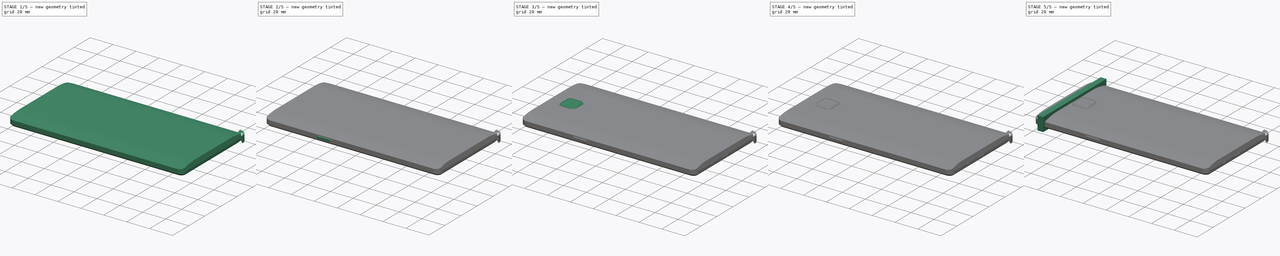
[diagram: build sequence overview — one tinted view per stage of 5, left to right]
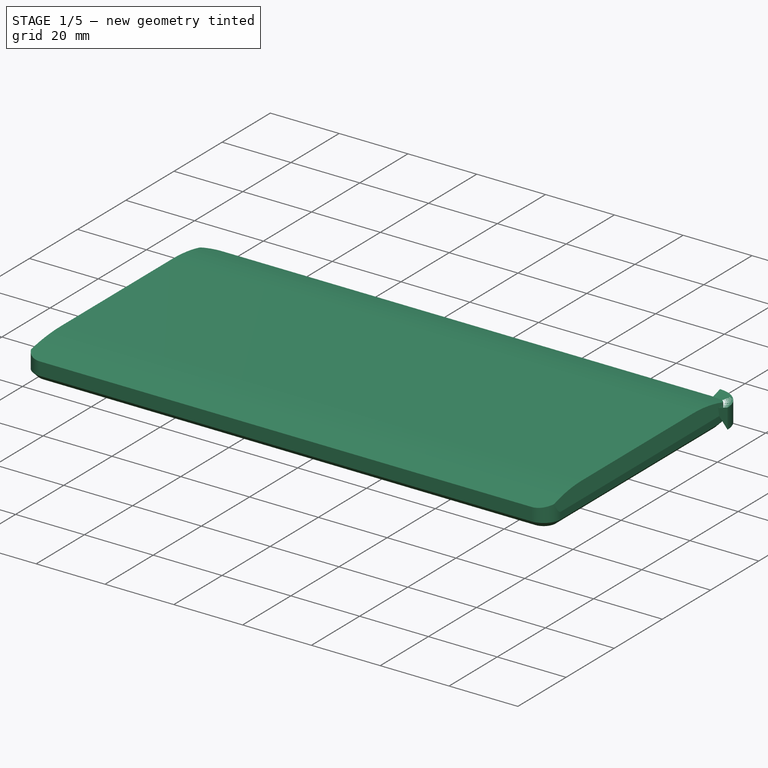
[diagram: stage 1 of 5 — iso view after this stage's code; geometry added in this stage tinted green]
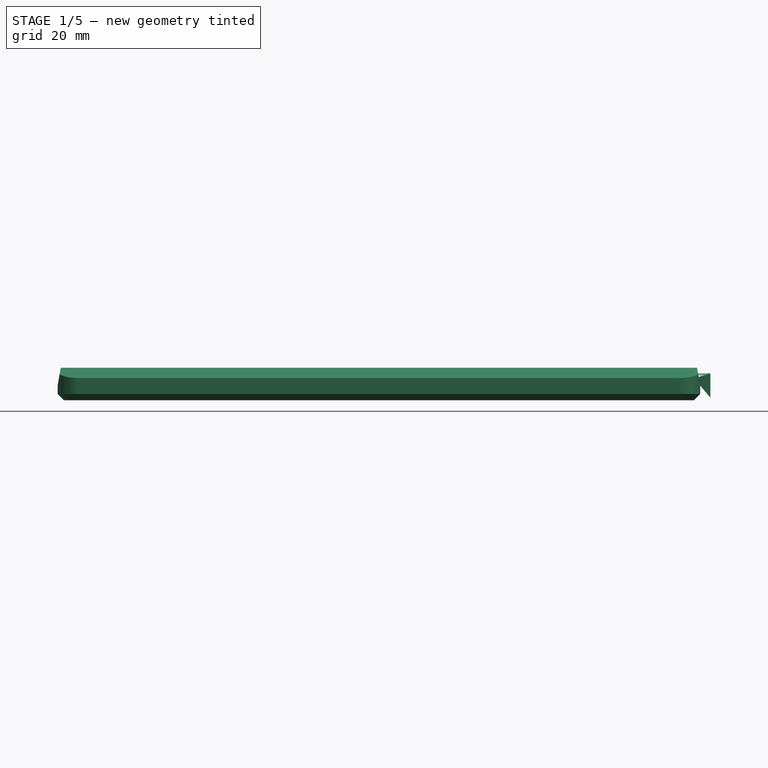
[diagram: stage 1 of 5 — front view after this stage's code; geometry added in this stage tinted green]
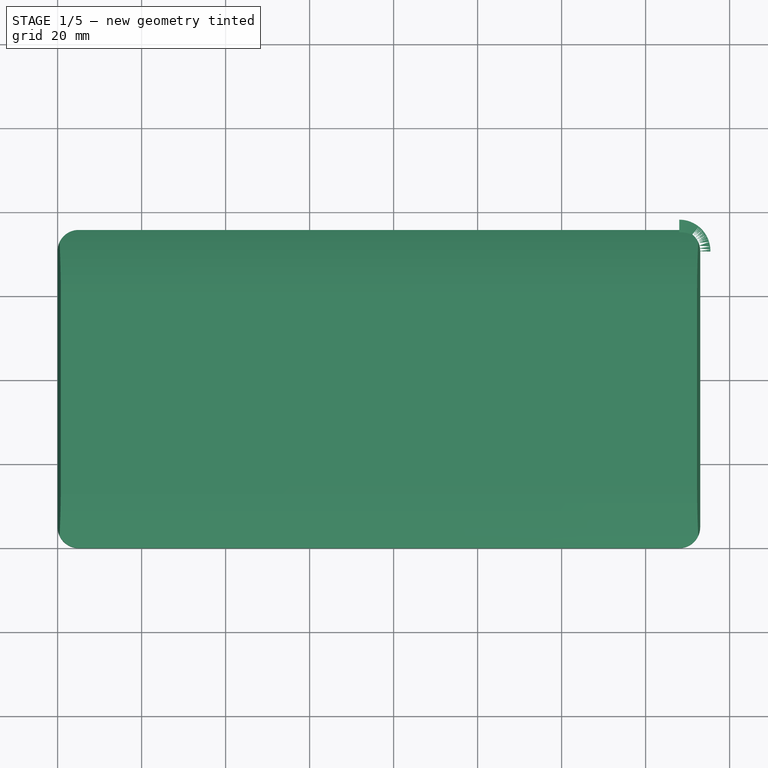
[diagram: stage 1 of 5 — top view after this stage's code; geometry added in this stage tinted green]
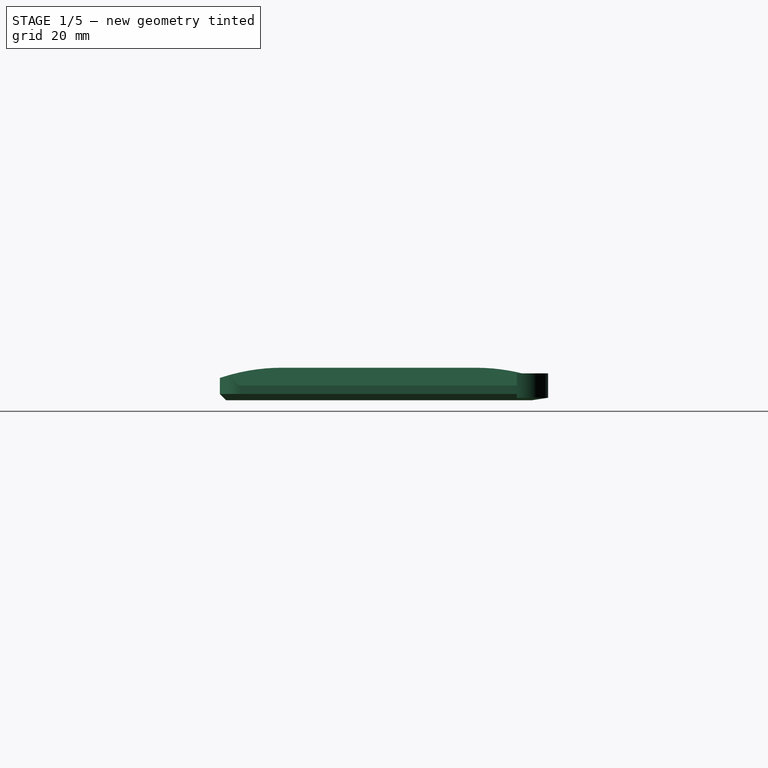
[diagram: stage 1 of 5 — right view after this stage's code; geometry added in this stage tinted green]
FCSTD DOCUMENT  (FreeCAD 0.17R13519 (Git))
Label: test107_op3case
License: All rights reserved
LicenseURL: http://en.wikipedia.org/wiki/All_rights_reserved
objects: Sketcher::SketchObject×34, PartDesign::Pocket×16, PartDesign::Pad×10, PartDesign::Chamfer×8, PartDesign::Plane×5, PartDesign::SubtractivePipe×5, PartDesign::Body×3, PartDesign::LinearPattern×2, PartDesign::Fillet×2, Part::Cut×1
note: 117 computed .brp shape members not serialized (recipe doc carries the construction recipe); baked Part::Feature solids carry a one-line shape summary decoded from their .brp

FEATURE [Sketcher::SketchObject] Sketch
  Placement = pos=(0,0,0) rot=(0.57735,0.57735,0.57735;2.0944rad)
  sketch-geometry (12):
    g0: LineSegment StartX=0 StartY=0 StartZ=0 EndX=75.75 EndY=0 EndZ=0
    g1: LineSegment [constr] StartX=75.75 StartY=0 StartZ=0 EndX=75.75 EndY=7.75 EndZ=0
    g2: LineSegment [constr] StartX=0 StartY=7.75 StartZ=0 EndX=0 EndY=0 EndZ=0
    g3: LineSegment StartX=0 StartY=0 StartZ=0 EndX=0 EndY=5.3 EndZ=0
    g4: LineSegment StartX=75.75 StartY=0 StartZ=0 EndX=75.75 EndY=5.3 EndZ=0
    g5: LineSegment [constr] StartX=0 StartY=5.3 StartZ=0 EndX=75.75 EndY=5.3 EndZ=0
    g6: LineSegment [constr] StartX=0 StartY=7.75 StartZ=0 EndX=37.875 EndY=7.75 EndZ=0
    g7: LineSegment [constr] StartX=37.875 StartY=7.75 StartZ=0 EndX=75.75 EndY=7.75 EndZ=0
    g8: ArcOfCircle CenterX=14.7985 CenterY=-38.1682 CenterZ=0 NormalX=0 NormalY=0 NormalZ=1 AngleXU=0 Radius=45.9182 StartAngle=1.5708 EndAngle=1.89893
    g9: LineSegment StartX=14.7986 StartY=7.75 StartZ=0 EndX=37.875 EndY=7.75 EndZ=0
    g10: LineSegment StartX=37.875 StartY=7.75 StartZ=0 EndX=60.9514 EndY=7.75 EndZ=0
    g11: ArcOfCircle CenterX=60.9514 CenterY=-38.1684 CenterZ=0 NormalX=0 NormalY=0 NormalZ=1 AngleXU=0 Radius=45.9184 StartAngle=1.24266 EndAngle=1.5708
  constraints (34):
    c: Coincident(g0,g1)
    c: Coincident(g2,g0)
    c: Horizontal(g0)
    c: Vertical(g1)
    c: Vertical(g2)
    c: Coincident(g0,g-1)
    c: DistanceY(g1,g1) = 7.75
    c: Coincident(g3,g-1)
    c: PointOnObject(g3,g2)
    c: Coincident(g4,g0)
    c: PointOnObject(g4,g1)
    c: Distance(g3,g-1) = 5.3
    c: Coincident(g5,g3)
    c: Coincident(g5,g4)
    c: Horizontal(g5)
    c: DistanceX(g0,g0) = 75.75
    c: Coincident(g6,g2)
    c: Coincident(g7,g6)
    c: Coincident(g7,g1)
    c: Equal(g6,g7)
    c: Horizontal(g6)
    c: Coincident(g8,g3)
    c: Coincident(g9,g8)
    c: Coincident(g9,g6)
    c: Horizontal(g7)
    c: Tangent(g8,g9)
    c: Distance(g3,g8) = 15
    c: Horizontal(g9)
    c: Coincident(g10,g6)
    c: Horizontal(g10)
    c: Equal(g10,g9)
    c: Coincident(g11,g4)
    c: Coincident(g11,g10)
    c: Tangent(g11,g10)
FEATURE [PartDesign::Pad] Pad  label="Phone"
  Length = 153
  Length2 = 100
  Placement = pos=(0,0,0) rot=(0.57735,0.57735,0.57735;2.0944rad)
  Profile = -> Sketch
  Refine = true
  Type = 0
FEATURE [Sketcher::SketchObject] Sketch002
  ExternalGeometry = -> [Pad,Sketch]
  MapMode = 5
  Placement = pos=(0,0,0) rot=(0.707107,0.707107,0;3.14159rad)
  Support = -> [Pad]
  sketch-geometry (16):
    g0: LineSegment StartX=5.6e-11 StartY=148 StartZ=0 EndX=0 EndY=153 EndZ=0
    g1: LineSegment StartX=0 StartY=153 StartZ=0 EndX=5.00002 EndY=153 EndZ=0
    g2: ArcOfCircle CenterX=5 CenterY=148 CenterZ=0 NormalX=0 NormalY=0 NormalZ=1 AngleXU=0 Radius=5 StartAngle=1.57079 EndAngle=3.14159
    g3: LineSegment StartX=70.75 StartY=153 StartZ=0 EndX=75.75 EndY=153 EndZ=0
    g4: LineSegment StartX=75.75 StartY=153 StartZ=0 EndX=75.75 EndY=148 EndZ=0
    g5: ArcOfCircle CenterX=70.75 CenterY=148 CenterZ=0 NormalX=0 NormalY=0 NormalZ=1 AngleXU=0 Radius=5 StartAngle=4.5171e-06 EndAngle=1.5708
    g6: LineSegment StartX=75.75 StartY=5 StartZ=0 EndX=75.75 EndY=0 EndZ=0
    g7: ArcOfCircle CenterX=70.75 CenterY=5 CenterZ=0 NormalX=0 NormalY=0 NormalZ=1 AngleXU=0 Radius=5 StartAngle=4.71239 EndAngle=6.28319
    g8: LineSegment StartX=5 StartY=0 StartZ=0 EndX=0 EndY=0 EndZ=0
    g9: LineSegment StartX=0 StartY=0 StartZ=0 EndX=0 EndY=5 EndZ=0
    g10: ArcOfCircle CenterX=5 CenterY=5 CenterZ=0 NormalX=0 NormalY=0 NormalZ=1 AngleXU=0 Radius=5 StartAngle=3.14159 EndAngle=4.71239
    g11: LineSegment StartX=70.75 StartY=2e-12 StartZ=0 EndX=75.75 EndY=0 EndZ=0
    g12: GeomPoint X=75.75 Y=0 Z=0
    g13: GeomPoint X=75.75 Y=0 Z=0
    g14: GeomPoint X=75.75 Y=0 Z=0
    g15: GeomPoint X=75.75 Y=0 Z=0
  constraints (45):
    c: Coincident(g1,g0)
    c: Coincident(g2,g1)
    c: Coincident(g2,g0)
    c: Perpendicular(g0,g1)
    c: Radius(g2) = 5
    c: Angle(g2) = 1.5708
    c: Tangent(g2,g1)
    c: Horizontal(g1)
    c: Coincident(g4,g3)
    c: Coincident(g5,g3)
    c: Perpendicular(g3,g4)
    c: Parallel(g2,g5) = 1.5708
    c: Tangent(g5,g4)
    c: Coincident(g4,g5)
    c: Angle(g5) = 1.5708
    c: Parallel(g5,g7) = 1.5708
    c: Coincident(g9,g8)
    c: Coincident(g10,g8)
    c: Perpendicular(g8,g9)
    c: Tangent(g10,g9)
    c: Coincident(g9,g10)
    c: Parallel(g5,g10) = 1.5708
    c: Angle(g7) = 1.5708
    c: Coincident(g6,g7)
    c: Angle(g10) = 1.5708
    c: Coincident(g8,g-1)
    c: Horizontal(g8)
    c: Horizontal(g3)
    c: Vertical(g6)
    c: Coincident(g11,g7)
    c: Coincident(g11,g6)
    c: Perpendicular(g6,g11)
    c: Tangent(g7,g11)
    c: Radius(g5) = 5
    c: Radius(g7) = 5
    c: Radius(g10) = 5
    c: Coincident(g12,g6)
    c: Coincident(g13,g-6)
    c: Coincident(g14,g13)
    c: Coincident(g15,g6)
    c: PointOnObject(g13,g11)
    c: PointOnObject(g13,g6)
    c: PointOnObject(g-5,g3)
    c: PointOnObject(g-5,g4)
    c: Coincident(g0,g-4)
FEATURE [PartDesign::Pocket] Pocket  label="Phone001"
  BaseFeature = -> Pad
  Length = 5
  Length2 = 100
  Placement = pos=(0,0,0) rot=(0.57735,0.57735,0.57735;2.0944rad)
  Profile = -> Sketch002
  Type = 1
FEATURE [PartDesign::Body] Body001  label="Case"
  Group = -> [Sketch005,Pad001]
  Origin = -> Origin001
  Tip = -> Pad001
FEATURE [PartDesign::Chamfer] Chamfer  label="ScreenChamfer"
  Base = -> Pocket [Face1]
  BaseFeature = -> Pocket
  Placement = pos=(0,0,0) rot=(0.57735,0.57735,0.57735;2.0944rad)
  Size = 1.5
FEATURE [Sketcher::SketchObject] Sketch006
  ExternalGeometry = -> [Chamfer]
  MapMode = 5
  Placement = pos=(0,0,0) rot=(0.57735,0.57735,-0.57735;2.0944rad)
  Support = -> [Chamfer]
  sketch-geometry (8):
    g0: LineSegment StartX=-3.5 StartY=0 StartZ=0 EndX=-7.75 EndY=0.74939 EndZ=0
    g1: LineSegment [constr] StartX=-7.75 StartY=0 StartZ=0 EndX=-6.69236 EndY=0 EndZ=0
    g2: LineSegment StartX=-7.75 StartY=0 StartZ=0 EndX=-7.75 EndY=0.74939 EndZ=0
    g3: LineSegment StartX=-7.75 StartY=0 StartZ=0 EndX=-3.5 EndY=0 EndZ=0
    g4: LineSegment StartX=-3.5 StartY=153 StartZ=0 EndX=-7.75 EndY=152.251 EndZ=0
    g5: LineSegment StartX=-7.75 StartY=152.251 StartZ=0 EndX=-7.75 EndY=153 EndZ=0
    g6: LineSegment [constr] StartX=-6.69236 StartY=153 StartZ=0 EndX=-7.75 EndY=153 EndZ=0
    g7: LineSegment StartX=-3.5 StartY=153 StartZ=0 EndX=-7.75 EndY=153 EndZ=0
  constraints (20):
    c: PointOnObject(g0,g-3)
    c: DistanceX(g0,g-3) = 2
    c: Coincident(g1,g-5)
    c: Coincident(g1,g-3)
    c: Angle(g0,g-3) = 0.174533
    c: Coincident(g2,g1)
    c: Coincident(g2,g0)
    c: Vertical(g2)
    c: Coincident(g3,g1)
    c: Coincident(g3,g0)
    c: PointOnObject(g4,g-4)
    c: Coincident(g4,g5)
    c: Coincident(g6,g-4)
    c: Coincident(g6,g-6)
    c: Coincident(g5,g6)
    c: Vertical(g5)
    c: Angle(g-4,g4) = 0.174533
    c: Distance(g-4,g4) = 2
    c: Coincident(g7,g4)
    c: Coincident(g7,g5)
FEATURE [PartDesign::Pocket] Pocket001  label="EdgeChamfer"
  BaseFeature = -> Chamfer
  Length = 5
  Length2 = 100
  Placement = pos=(0,0,0) rot=(0.57735,0.57735,0.57735;2.0944rad)
  Profile = -> Sketch006
  Type = 1
FEATURE [PartDesign::Body] Body  label="OP3"
  Group = -> [Sketch,Pad,Sketch002,Pocket,Chamfer,Sketch006,Pocket001,Sketch008,Pad002,Chamfer001,Sketch009,Pad003,Chamfer002,Sketch010,Pocket002,Sketch011,Pad004,Chamfer003,Sketch012,Pocket003,Sketch013,Pad005,Sketch014,Pocket004,LinearPattern,Sketch015,Pocket005,Sketch016,Pad006,Chamfer004,Sketch017,Pocket006,Sketch019,Pocket007,Sketch020,Sketch034,Pad009,Fillet,Pocket008,Sketch021,DatumPlane,Sketch022,+26 more]
  Origin = -> Origin
  Tip = -> Fillet001
FEATURE [Sketcher::SketchObject] Sketch036
  Placement = pos=(0,0,0) rot=(0.57735,0.57735,0.57735;2.0944rad)
  sketch-geometry (12):
    g0: LineSegment StartX=0 StartY=0 StartZ=0 EndX=75.75 EndY=0 EndZ=0
    g1: LineSegment [constr] StartX=75.75 StartY=0 StartZ=0 EndX=75.75 EndY=7.75 EndZ=0
    g2: LineSegment [constr] StartX=0 StartY=7.75 StartZ=0 EndX=0 EndY=0 EndZ=0
    g3: LineSegment StartX=0 StartY=0 StartZ=0 EndX=0 EndY=5.3 EndZ=0
    g4: LineSegment StartX=75.75 StartY=0 StartZ=0 EndX=75.75 EndY=5.3 EndZ=0
    g5: LineSegment [constr] StartX=0 StartY=5.3 StartZ=0 EndX=75.75 EndY=5.3 EndZ=0
    g6: LineSegment [constr] StartX=0 StartY=7.75 StartZ=0 EndX=37.875 EndY=7.75 EndZ=0
    g7: LineSegment [constr] StartX=37.875 StartY=7.75 StartZ=0 EndX=75.75 EndY=7.75 EndZ=0
    g8: ArcOfCircle CenterX=14.7985 CenterY=-38.1682 CenterZ=0 NormalX=0 NormalY=0 NormalZ=1 AngleXU=0 Radius=45.9182 StartAngle=1.5708 EndAngle=1.89893
    g9: LineSegment StartX=14.7986 StartY=7.75 StartZ=0 EndX=37.875 EndY=7.75 EndZ=0
    g10: LineSegment StartX=37.875 StartY=7.75 StartZ=0 EndX=60.9514 EndY=7.75 EndZ=0
    g11: ArcOfCircle CenterX=60.9514 CenterY=-38.1684 CenterZ=0 NormalX=0 NormalY=0 NormalZ=1 AngleXU=0 Radius=45.9184 StartAngle=1.24266 EndAngle=1.5708
  constraints (34):
    c: Coincident(g0,g1)
    c: Coincident(g2,g0)
    c: Horizontal(g0)
    c: Vertical(g1)
    c: Vertical(g2)
    c: Coincident(g0,g-1)
    c: DistanceY(g1,g1) = 7.75
    c: Coincident(g3,g-1)
    c: PointOnObject(g3,g2)
    c: Coincident(g4,g0)
    c: PointOnObject(g4,g1)
    c: Distance(g3,g-1) = 5.3
    c: Coincident(g5,g3)
    c: Coincident(g5,g4)
    c: Horizontal(g5)
    c: DistanceX(g0,g0) = 75.75
    c: Coincident(g6,g2)
    c: Coincident(g7,g6)
    c: Coincident(g7,g1)
    c: Equal(g6,g7)
    c: Horizontal(g6)
    c: Coincident(g8,g3)
    c: Coincident(g9,g8)
    c: Coincident(g9,g6)
    c: Horizontal(g7)
    c: Tangent(g8,g9)
    c: Distance(g3,g8) = 15
    c: Horizontal(g9)
    c: Coincident(g10,g6)
    c: Horizontal(g10)
    c: Equal(g10,g9)
    c: Coincident(g11,g4)
    c: Coincident(g11,g10)
    c: Tangent(g11,g10)
FEATURE [PartDesign::Pad] Pad010  label="Phone002"
  Length = 153
  Length2 = 100
  Placement = pos=(0,0,0) rot=(0.57735,0.57735,0.57735;2.0944rad)
  Profile = -> Sketch036
  Refine = true
  Type = 0
FEATURE [Sketcher::SketchObject] Sketch037
  ExternalGeometry = -> [Pad010,Sketch036]
  MapMode = 5
  Placement = pos=(0,0,0) rot=(0.707107,0.707107,0;3.14159rad)
  Support = -> [Pad010]
  sketch-geometry (16):
    g0: LineSegment StartX=5.6e-11 StartY=148 StartZ=0 EndX=0 EndY=153 EndZ=0
    g1: LineSegment StartX=0 StartY=153 StartZ=0 EndX=5.00002 EndY=153 EndZ=0
    g2: ArcOfCircle CenterX=5 CenterY=148 CenterZ=0 NormalX=0 NormalY=0 NormalZ=1 AngleXU=0 Radius=5 StartAngle=1.57079 EndAngle=3.14159
    g3: LineSegment StartX=70.75 StartY=153 StartZ=0 EndX=75.75 EndY=153 EndZ=0
    g4: LineSegment StartX=75.75 StartY=153 StartZ=0 EndX=75.75 EndY=148 EndZ=0
    g5: ArcOfCircle CenterX=70.75 CenterY=148 CenterZ=0 NormalX=0 NormalY=0 NormalZ=1 AngleXU=0 Radius=5 StartAngle=4.5171e-06 EndAngle=1.5708
    g6: LineSegment StartX=75.75 StartY=5 StartZ=0 EndX=75.75 EndY=0 EndZ=0
    g7: ArcOfCircle CenterX=70.75 CenterY=5 CenterZ=0 NormalX=0 NormalY=0 NormalZ=1 AngleXU=0 Radius=5 StartAngle=4.71239 EndAngle=6.28319
    g8: LineSegment StartX=5 StartY=0 StartZ=0 EndX=0 EndY=0 EndZ=0
    g9: LineSegment StartX=0 StartY=0 StartZ=0 EndX=0 EndY=5 EndZ=0
    g10: ArcOfCircle CenterX=5 CenterY=5 CenterZ=0 NormalX=0 NormalY=0 NormalZ=1 AngleXU=0 Radius=5 StartAngle=3.14159 EndAngle=4.71239
    g11: LineSegment StartX=70.75 StartY=2e-12 StartZ=0 EndX=75.75 EndY=0 EndZ=0
    g12: GeomPoint X=75.75 Y=0 Z=0
    g13: GeomPoint X=75.75 Y=0 Z=0
    g14: GeomPoint X=75.75 Y=0 Z=0
    g15: GeomPoint X=75.75 Y=0 Z=0
  constraints (45):
    c: Coincident(g1,g0)
    c: Coincident(g2,g1)
    c: Coincident(g2,g0)
    c: Perpendicular(g0,g1)
    c: Radius(g2) = 5
    c: Angle(g2) = 1.5708
    c: Tangent(g2,g1)
    c: Horizontal(g1)
    c: Coincident(g4,g3)
    c: Coincident(g5,g3)
    c: Perpendicular(g3,g4)
    c: Parallel(g2,g5) = 1.5708
    c: Tangent(g5,g4)
    c: Coincident(g4,g5)
    c: Angle(g5) = 1.5708
    c: Parallel(g5,g7) = 1.5708
    c: Coincident(g9,g8)
    c: Coincident(g10,g8)
    c: Perpendicular(g8,g9)
    c: Tangent(g10,g9)
    c: Coincident(g9,g10)
    c: Parallel(g5,g10) = 1.5708
    c: Angle(g7) = 1.5708
    c: Coincident(g6,g7)
    c: Angle(g10) = 1.5708
    c: Coincident(g8,g-1)
    c: Horizontal(g8)
    c: Horizontal(g3)
    c: Vertical(g6)
    c: Coincident(g11,g7)
    c: Coincident(g11,g6)
    c: Perpendicular(g6,g11)
    c: Tangent(g7,g11)
    c: Radius(g5) = 5
    c: Radius(g7) = 5
    c: Radius(g10) = 5
    c: Coincident(g12,g6)
    c: Coincident(g13,g-6)
    c: Coincident(g14,g13)
    c: Coincident(g15,g6)
    c: PointOnObject(g13,g11)
    c: PointOnObject(g13,g6)
    c: PointOnObject(g-5,g3)
    c: PointOnObject(g-5,g4)
    c: Coincident(g0,g-4)
FEATURE [PartDesign::Pocket] Pocket014  label="Phone003"
  BaseFeature = -> Pad010
  Length = 5
  Length2 = 100
  Placement = pos=(0,0,0) rot=(0.57735,0.57735,0.57735;2.0944rad)
  Profile = -> Sketch037
  Type = 1
FEATURE [PartDesign::Chamfer] Chamfer012  label="ScreenChamfer001"
  Base = -> Pocket014 [Face1]
  BaseFeature = -> Pocket014
  Placement = pos=(0,0,0) rot=(0.57735,0.57735,0.57735;2.0944rad)
  Size = 1.5
FEATURE [Sketcher::SketchObject] Sketch038
  ExternalGeometry = -> [Chamfer012]
  MapMode = 5
  Placement = pos=(0,0,0) rot=(0.57735,0.57735,-0.57735;2.0944rad)
  Support = -> [Chamfer012]
  sketch-geometry (8):
    g0: LineSegment StartX=-3.5 StartY=0 StartZ=0 EndX=-7.75 EndY=0.74939 EndZ=0
    g1: LineSegment [constr] StartX=-7.75 StartY=0 StartZ=0 EndX=-6.69236 EndY=0 EndZ=0
    g2: LineSegment StartX=-7.75 StartY=0 StartZ=0 EndX=-7.75 EndY=0.74939 EndZ=0
    g3: LineSegment StartX=-7.75 StartY=0 StartZ=0 EndX=-3.5 EndY=0 EndZ=0
    g4: LineSegment StartX=-3.5 StartY=153 StartZ=0 EndX=-7.75 EndY=152.251 EndZ=0
    g5: LineSegment StartX=-7.75 StartY=152.251 StartZ=0 EndX=-7.75 EndY=153 EndZ=0
    g6: LineSegment [constr] StartX=-6.69236 StartY=153 StartZ=0 EndX=-7.75 EndY=153 EndZ=0
    g7: LineSegment StartX=-3.5 StartY=153 StartZ=0 EndX=-7.75 EndY=153 EndZ=0
  constraints (20):
    c: PointOnObject(g0,g-3)
    c: DistanceX(g0,g-3) = 2
    c: Coincident(g1,g-5)
    c: Coincident(g1,g-3)
    c: Angle(g0,g-3) = 0.174533
    c: Coincident(g2,g1)
    c: Coincident(g2,g0)
    c: Vertical(g2)
    c: Coincident(g3,g1)
    c: Coincident(g3,g0)
    c: PointOnObject(g4,g-4)
    c: Coincident(g4,g5)
    c: Coincident(g6,g-4)
    c: Coincident(g6,g-6)
    c: Coincident(g5,g6)
    c: Vertical(g5)
    c: Angle(g-4,g4) = 0.174533
    c: Distance(g-4,g4) = 2
    c: Coincident(g7,g4)
    c: Coincident(g7,g5)
FEATURE [PartDesign::Pocket] Pocket015  label="EdgeChamfer001"
  BaseFeature = -> Chamfer012
  Length = 5
  Length2 = 100
  Placement = pos=(0,0,0) rot=(0.57735,0.57735,0.57735;2.0944rad)
  Profile = -> Sketch038
  Type = 1
FEATURE [PartDesign::Plane] DatumPlane003
  AttachmentOffset = pos=(0,0,0) rot=(0,1,0;1.5708rad)
  MapMode = 45
  Placement = pos=(76.5,75.75,3.4) rot=(0,0,-1;1.5708rad)
  Support = -> [Pocket015]
FEATURE [Sketcher::SketchObject] Sketch041
  ExternalGeometry = -> [Pocket015]
  MapMode = 5
  Placement = pos=(76.5,75.75,3.4) rot=(0,0,-1;1.5708rad)
  Support = -> [DatumPlane003]
  sketch-geometry (3):
    g0: ArcOfCircle CenterX=5 CenterY=71.5 CenterZ=0 NormalX=0 NormalY=0 NormalZ=1 AngleXU=0 Radius=5 StartAngle=1.56292 EndAngle=3.14159
    g1: LineSegment StartX=0 StartY=71.5 StartZ=0 EndX=0 EndY=66.4206 EndZ=0
    g2: LineSegment StartX=13.7839 StartY=76.4998 StartZ=0 EndX=5.0394 EndY=76.4998 EndZ=0
  constraints (7):
    c: Coincident(g0,g-4)
    c: Vertical(g1)
    c: Coincident(g1,g0)
    c: Tangent(g1,g0)
    c: Horizontal(g2)
    c: Coincident(g2,g0)
    c: DistanceX(g0,g-3) = 0
FEATURE [PartDesign::Plane] DatumPlane004
  MapMode = 7
  Placement = pos=(148,75.75,3.4) rot=(0.57735,0.57735,0.57735;2.0944rad)
  Support = -> [Sketch041]
FEATURE [Sketcher::SketchObject] Sketch039
  ExternalGeometry = -> [Pocket015]
  MapMode = 5
  Placement = pos=(148,75.75,3.4) rot=(0.57735,0.57735,0.57735;2.0944rad)
  Support = -> [DatumPlane004]
  sketch-geometry (12):
    g0: LineSegment [constr] StartX=-2.8796 StartY=2.77613 StartZ=0 EndX=-5.1e-11 EndY=1.9 EndZ=0
    g1-g4: Circle [constr] x4 (B-spline internal-alignment scaffolding for g5; pole/knot coordinates omitted)
    g5: BSplineCurve PolesCount=4 KnotsCount=2 Degree=3 IsPeriodic=0
    g6: GeomPoint [constr] X=-0.588926 Y=2.07918 Z=0
    g7: GeomPoint [constr] X=-0.359087 Y=-2.25909 Z=0
    g8: LineSegment StartX=-0.588926 StartY=2.07918 StartZ=0 EndX=2.42793 EndY=2.99385 EndZ=0
    g9: LineSegment StartX=2.42793 StartY=2.99385 StartZ=0 EndX=2.42793 EndY=-2.79901 EndZ=0
    g10: LineSegment StartX=-0.359087 StartY=-2.25909 StartZ=0 EndX=-1.5 EndY=-3.4 EndZ=0
    g11: LineSegment StartX=-1.5 StartY=-3.4 StartZ=0 EndX=2.42793 EndY=-2.79901 EndZ=0
  constraints (19):
    c: Coincident(g0,g-5)
    c: Coincident(g0,g-4)
    c: PointOnObject(g1,g0)
    c: Radius(g1) = 0.4
    c: Equal(g1,g2)
    c: Equal(g1,g3)
    c: Equal(g1,g4)
    c: PointOnObject(g4,g-3)
    c: InternalAlignment(g1-g4 -> g5) x4
    c: InternalAlignment(g6,g5)
    c: InternalAlignment(g7,g5)
    c: Coincident(g8,g1)
    c: Tangent(g8,g2)
    c: Coincident(g8,g9)
    c: Vertical(g9)
    c: Coincident(g10,g4)
    c: Coincident(g10,g-3)
    c: Coincident(g11,g10)
    c: Coincident(g11,g9)
FEATURE [PartDesign::SubtractivePipe] SubtractivePipe004
  AuxilleryCurvelinear = true
  AuxillerySpineTangent = false
  BaseFeature = -> Pocket015
  Binormal = (0,0,0)
  Mode = 0
  Placement = pos=(0,0,0) rot=(0.57735,0.57735,0.57735;2.0944rad)
  Profile = -> Sketch039
  Spine = -> Sketch041 [Edge2]
  SpineTangent = false
  Transformation = 0
  Transition = 0
FEATURE [PartDesign::Body] Body002  label="OP004"
  Group = -> [Sketch036,Pad010,Sketch037,Pocket014,Chamfer012,Sketch038,Pocket015,Sketch039,DatumPlane003,Sketch041,SubtractivePipe004,DatumPlane004]
  Origin = -> Origin002
  Tip = -> Pocket015
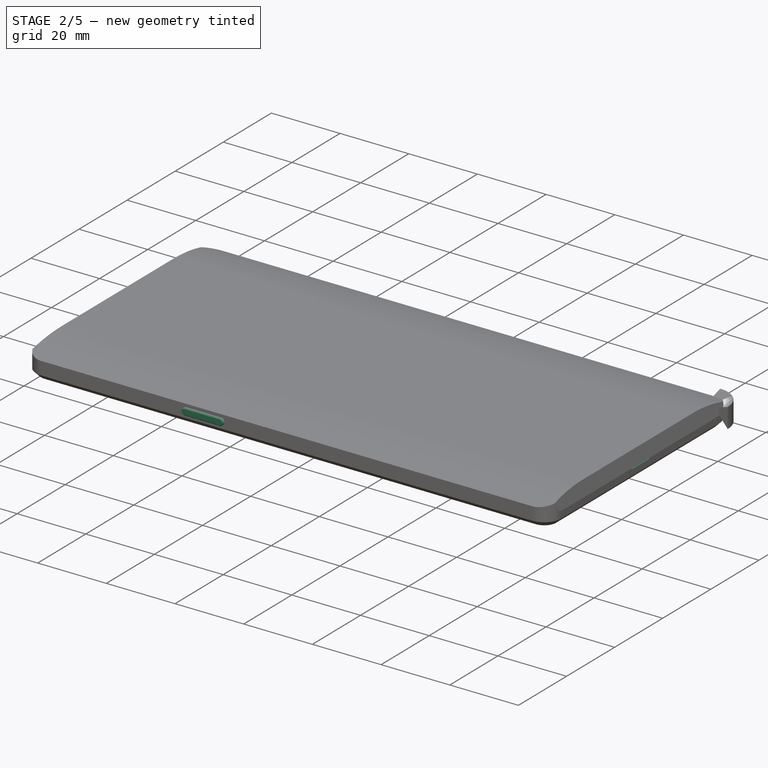
[diagram: stage 2 of 5 — iso view after this stage's code; geometry added in this stage tinted green]
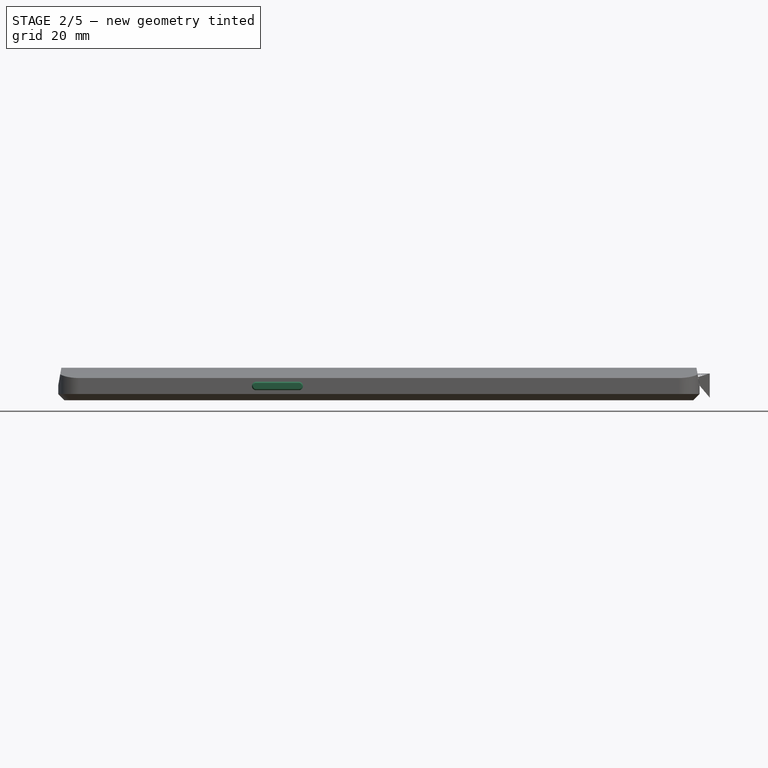
[diagram: stage 2 of 5 — front view after this stage's code; geometry added in this stage tinted green]
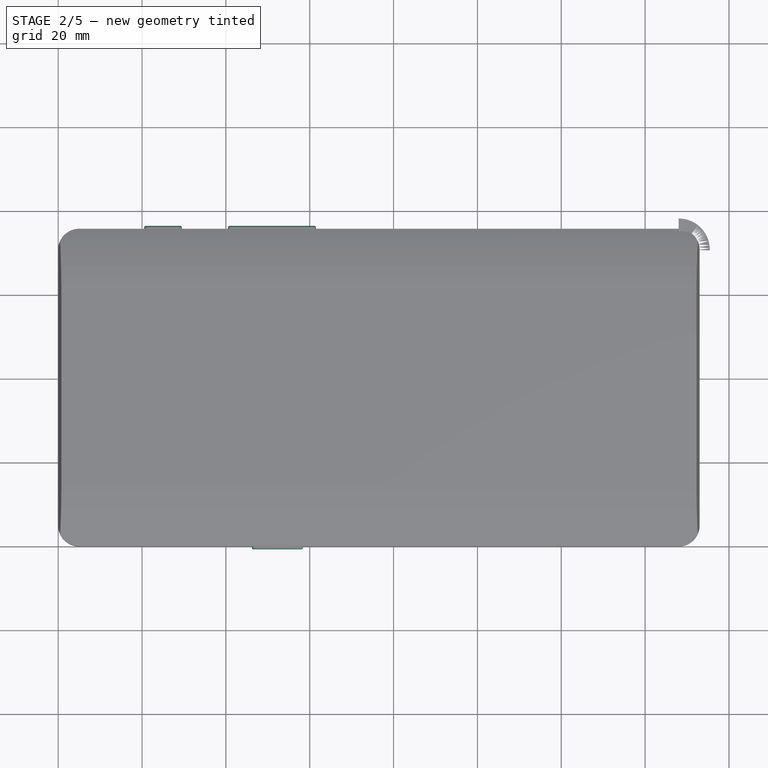
[diagram: stage 2 of 5 — top view after this stage's code; geometry added in this stage tinted green]
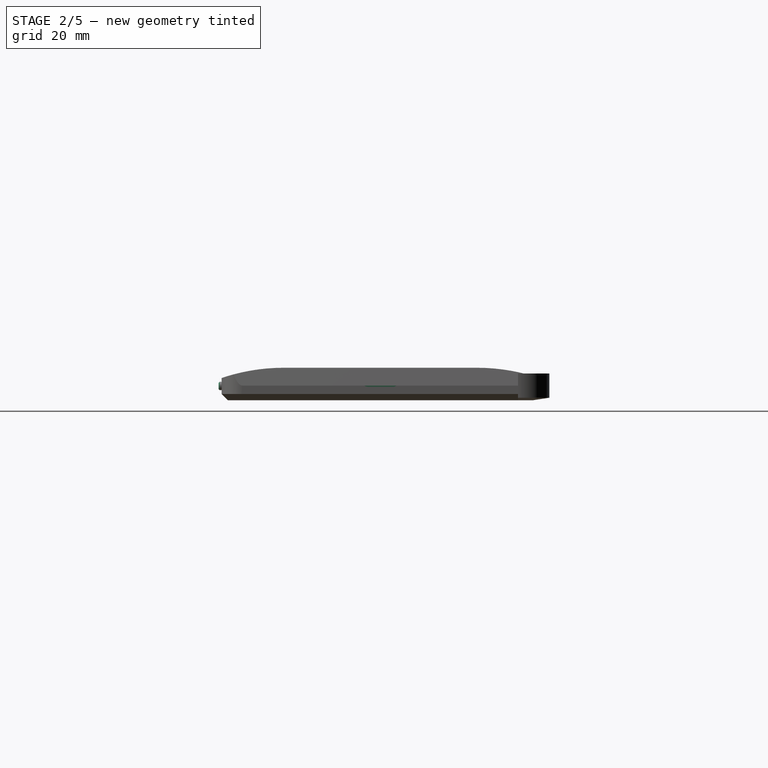
[diagram: stage 2 of 5 — right view after this stage's code; geometry added in this stage tinted green]
FEATURE [Sketcher::SketchObject] Sketch008
  ExternalGeometry = -> [Pocket001]
  MapMode = 5
  Placement = pos=(0,0,0) rot=(0.57735,0.57735,-0.57735;2.0944rad)
  Support = -> [Pocket001]
  sketch-geometry (6):
    g0: ArcOfCircle CenterX=-3.4 CenterY=47.2 CenterZ=0 NormalX=0 NormalY=0 NormalZ=1 AngleXU=0 Radius=1 StartAngle=3.14159 EndAngle=6.28319
    g1: ArcOfCircle CenterX=-3.4 CenterY=57.4 CenterZ=0 NormalX=0 NormalY=0 NormalZ=1 AngleXU=0 Radius=1 StartAngle=0 EndAngle=3.14159
    g2: LineSegment StartX=-2.4 StartY=47.2 StartZ=0 EndX=-2.4 EndY=57.4 EndZ=0
    g3: LineSegment StartX=-4.4 StartY=47.2 StartZ=0 EndX=-4.4 EndY=57.4 EndZ=0
    g4: LineSegment [constr] StartX=-5.3 StartY=47.2 StartZ=0 EndX=-3.4 EndY=47.2 EndZ=0
    g5: LineSegment [constr] StartX=-3.4 StartY=47.2 StartZ=0 EndX=-1.5 EndY=47.2 EndZ=0
  constraints (16):
    c: Tangent(g0,g3) = 1.5708
    c: Tangent(g0,g2) = -1.5708
    c: Tangent(g2,g1) = -1.5708
    c: Tangent(g3,g1) = 1.5708
    c: Vertical(g2)
    c: Equal(g0,g1)
    c: Distance(g0,g-1) = 47.2
    c: Distance(g0,g1) = 10.2
    c: Radius(g0) = 1
    c: PointOnObject(g4,g-3)
    c: Coincident(g4,g0)
    c: Coincident(g4,g5)
    c: PointOnObject(g5,g-4)
    c: Equal(g4,g5)
    c: Horizontal(g4)
    c: Horizontal(g5)
FEATURE [PartDesign::Pad] Pad002  label="PowerButton"
  BaseFeature = -> Pocket001
  Length = 0.7
  Length2 = 100
  Placement = pos=(0,0,0) rot=(0.57735,0.57735,0.57735;2.0944rad)
  Profile = -> Sketch008
  Type = 0
FEATURE [PartDesign::Chamfer] Chamfer001  label="PowerButtonChamfer"
  Base = -> Pad002 [Face27]
  BaseFeature = -> Pad002
  Placement = pos=(0,0,0) rot=(0.57735,0.57735,0.57735;2.0944rad)
  Size = 0.25
FEATURE [Sketcher::SketchObject] Sketch009
  ExternalGeometry = -> [Chamfer001]
  MapMode = 5
  Placement = pos=(0,75.75,2e-12) rot=(-0.57735,-0.57735,-0.57735;2.0944rad)
  Support = -> [Chamfer001]
  sketch-geometry (6):
    g0: ArcOfCircle CenterX=3.4 CenterY=41.5 CenterZ=0 NormalX=0 NormalY=0 NormalZ=1 AngleXU=0 Radius=1 StartAngle=3.14159 EndAngle=6.28319
    g1: ArcOfCircle CenterX=3.4 CenterY=60.5 CenterZ=0 NormalX=0 NormalY=0 NormalZ=1 AngleXU=0 Radius=1 StartAngle=0 EndAngle=3.14159
    g2: LineSegment StartX=4.4 StartY=41.5 StartZ=0 EndX=4.4 EndY=60.5 EndZ=0
    g3: LineSegment StartX=2.4 StartY=41.5 StartZ=0 EndX=2.4 EndY=60.5 EndZ=0
    g4: LineSegment [constr] StartX=3.4 StartY=41.5 StartZ=0 EndX=1.5 EndY=41.5 EndZ=0
    g5: LineSegment [constr] StartX=3.4 StartY=41.5 StartZ=0 EndX=5.3 EndY=41.5 EndZ=0
  constraints (16):
    c: Tangent(g0,g3) = 1.5708
    c: Tangent(g0,g2) = -1.5708
    c: Tangent(g2,g1) = -1.5708
    c: Tangent(g3,g1) = 1.5708
    c: Vertical(g2)
    c: Equal(g0,g1)
    c: Coincident(g4,g0)
    c: PointOnObject(g4,g-3)
    c: Coincident(g5,g0)
    c: PointOnObject(g5,g-4)
    c: Equal(g4,g5)
    c: Horizontal(g4)
    c: Horizontal(g5)
    c: Distance(g0,g-1) = 41.5
    c: Distance(g0,g1) = 19
    c: Radius(g0) = 1
FEATURE [PartDesign::Pad] Pad003  label="VolumeButton"
  BaseFeature = -> Chamfer001
  Length = 0.7
  Length2 = 100
  Placement = pos=(0,0,0) rot=(0.57735,0.57735,0.57735;2.0944rad)
  Profile = -> Sketch009
  Type = 0
FEATURE [PartDesign::Chamfer] Chamfer002  label="VolumeButtonChamfer"
  Base = -> Pad003 [Face36]
  BaseFeature = -> Pad003
  Placement = pos=(0,0,0) rot=(0.57735,0.57735,0.57735;2.0944rad)
  Size = 0.25
FEATURE [Sketcher::SketchObject] Sketch010
  ExternalGeometry = -> [Chamfer002]
  MapMode = 5
  Placement = pos=(0,75.75,2e-12) rot=(-0.57735,-0.57735,-0.57735;2.0944rad)
  Support = -> [Chamfer002]
  sketch-geometry (6):
    g0: LineSegment [constr] StartX=1.5 StartY=20.5 StartZ=0 EndX=3.4 EndY=20.5 EndZ=0
    g1: LineSegment [constr] StartX=3.4 StartY=20.5 StartZ=0 EndX=5.3 EndY=20.5 EndZ=0
    g2: ArcOfCircle CenterX=3.4 CenterY=20.5 CenterZ=0 NormalX=0 NormalY=0 NormalZ=1 AngleXU=0 Radius=1 StartAngle=3.14159 EndAngle=6.28319
    g3: ArcOfCircle CenterX=3.4 CenterY=29.5 CenterZ=0 NormalX=0 NormalY=0 NormalZ=1 AngleXU=0 Radius=1 StartAngle=0 EndAngle=3.14159
    g4: LineSegment StartX=4.4 StartY=20.5 StartZ=0 EndX=4.4 EndY=29.5 EndZ=0
    g5: LineSegment StartX=2.4 StartY=20.5 StartZ=0 EndX=2.4 EndY=29.5 EndZ=0
  constraints (16):
    c: PointOnObject(g0,g-3)
    c: Coincident(g0,g1)
    c: PointOnObject(g1,g-4)
    c: Equal(g0,g1)
    c: Horizontal(g0)
    c: Horizontal(g1)
    c: Tangent(g2,g5) = 1.5708
    c: Tangent(g2,g4) = -1.5708
    c: Tangent(g4,g3) = -1.5708
    c: Tangent(g5,g3) = 1.5708
    c: Vertical(g4)
    c: Equal(g2,g3)
    c: Coincident(g2,g0)
    c: Distance(g0,g-1) = 20.5
    c: Distance(g3,g0) = 9
    c: Radius(g2) = 1
FEATURE [PartDesign::Pocket] Pocket002  label="AlertSliderHole"
  BaseFeature = -> Chamfer002
  Length = 1
  Length2 = 100
  Placement = pos=(0,0,0) rot=(0.57735,0.57735,0.57735;2.0944rad)
  Profile = -> Sketch010
  Type = 0
FEATURE [Sketcher::SketchObject] Sketch011
  ExternalGeometry = -> [Pocket002]
  MapMode = 5
  Placement = pos=(0,74.75,2e-12) rot=(-0.57735,-0.57735,-0.57735;2.0944rad)
  Support = -> [Pocket002]
  sketch-geometry (8):
    g0: ArcOfCircle CenterX=3.4 CenterY=21.5 CenterZ=0 NormalX=0 NormalY=0 NormalZ=1 AngleXU=0 Radius=1 StartAngle=3.14159 EndAngle=6.28319
    g1: ArcOfCircle CenterX=3.4 CenterY=28.5 CenterZ=0 NormalX=0 NormalY=0 NormalZ=1 AngleXU=0 Radius=1 StartAngle=0 EndAngle=3.14159
    g2: LineSegment StartX=4.4 StartY=21.5 StartZ=0 EndX=4.4 EndY=28.5 EndZ=0
    g3: LineSegment StartX=2.4 StartY=21.5 StartZ=0 EndX=2.4 EndY=28.5 EndZ=0
    g4: LineSegment [constr] StartX=2.4 StartY=20.5 StartZ=0 EndX=3.4 EndY=21.5 EndZ=0
    g5: LineSegment [constr] StartX=3.4 StartY=21.5 StartZ=0 EndX=4.4 EndY=20.5 EndZ=0
    g6: LineSegment [constr] StartX=4.4 StartY=29.5 StartZ=0 EndX=3.4 EndY=28.5 EndZ=0
    g7: LineSegment [constr] StartX=3.4 StartY=28.5 StartZ=0 EndX=2.4 EndY=29.5 EndZ=0
  constraints (18):
    c: Tangent(g0,g3) = 1.5708
    c: Tangent(g0,g2) = -1.5708
    c: Tangent(g2,g1) = -1.5708
    c: Tangent(g3,g1) = 1.5708
    c: Vertical(g2)
    c: Equal(g0,g1)
    c: Distance(g1,g0) = 7
    c: Radius(g1) = 1
    c: Coincident(g4,g-3)
    c: Coincident(g4,g0)
    c: Coincident(g5,g0)
    c: Coincident(g5,g-4)
    c: Coincident(g6,g-4)
    c: Coincident(g6,g1)
    c: Coincident(g7,g1)
    c: Coincident(g7,g-3)
    c: Equal(g4,g5)
    c: Equal(g5,g6)
FEATURE [PartDesign::Pad] Pad004  label="AlertSlider"
  BaseFeature = -> Pocket002
  Length = 1.7
  Length2 = 100
  Placement = pos=(0,0,0) rot=(0.57735,0.57735,0.57735;2.0944rad)
  Profile = -> Sketch011
  Type = 0
FEATURE [PartDesign::Chamfer] Chamfer003  label="AlertSliderChamfer"
  Base = -> Pad004 [Face34]
  BaseFeature = -> Pad004
  Placement = pos=(0,0,0) rot=(0.57735,0.57735,0.57735;2.0944rad)
  Size = 0.25
FEATURE [Sketcher::SketchObject] Sketch012
  ExternalGeometry = -> [Chamfer003]
  MapMode = 5
  Placement = pos=(153,0,0) rot=(0.57735,0.57735,0.57735;2.0944rad)
  Support = -> [Chamfer003]
  sketch-geometry (11):
    g0: ArcOfCircle CenterX=40.875 CenterY=4.625 CenterZ=0 NormalX=0 NormalY=0 NormalZ=1 AngleXU=0 Radius=1.4 StartAngle=4.71239 EndAngle=7.85398
    g1: ArcOfCircle CenterX=34.875 CenterY=4.625 CenterZ=0 NormalX=0 NormalY=0 NormalZ=1 AngleXU=0 Radius=1.4 StartAngle=1.5708 EndAngle=4.71239
    g2: LineSegment StartX=40.875 StartY=6.025 StartZ=0 EndX=34.875 EndY=6.025 EndZ=0
    g3: LineSegment StartX=40.875 StartY=3.225 StartZ=0 EndX=34.875 EndY=3.225 EndZ=0
    g4: LineSegment [constr] StartX=40.875 StartY=7.75 StartZ=0 EndX=40.875 EndY=4.625 EndZ=0
    g5: LineSegment [constr] StartX=40.875 StartY=4.625 StartZ=0 EndX=40.875 EndY=1.5 EndZ=0
    g6: LineSegment [constr] StartX=34.875 StartY=6.025 StartZ=0 EndX=40.875 EndY=3.225 EndZ=0
    g7: LineSegment [constr] StartX=34.875 StartY=3.225 StartZ=0 EndX=40.875 EndY=6.025 EndZ=0
    g8: GeomPoint X=37.875 Y=4.625 Z=0
    g9: LineSegment [constr] StartX=37.875 StartY=4.625 StartZ=0 EndX=75.75 EndY=4.625 EndZ=0
    g10: LineSegment [constr] StartX=37.875 StartY=4.625 StartZ=0 EndX=5.6e-11 EndY=4.625 EndZ=0
  constraints (28):
    c: Tangent(g0,g3) = 1.5708
    c: Tangent(g0,g2) = -1.5708
    c: Tangent(g2,g1) = -1.5708
    c: Tangent(g3,g1) = 1.5708
    c: Horizontal(g2)
    c: Equal(g0,g1)
    c: PointOnObject(g4,g-4)
    c: Coincident(g4,g0)
    c: Vertical(g4)
    c: Coincident(g5,g0)
    c: PointOnObject(g5,g-3)
    c: Equal(g5,g4)
    c: Vertical(g5)
    c: Radius(g0) = 1.4
    c: Distance(g0,g1) = 6
    c: Coincident(g6,g1)
    c: Coincident(g7,g1)
    c: Coincident(g7,g0)
    c: Coincident(g6,g0)
    c: PointOnObject(g8,g6)
    c: PointOnObject(g8,g7)
    c: Coincident(g9,g8)
    c: PointOnObject(g9,g-6)
    c: Horizontal(g9)
    c: Coincident(g10,g8)
    c: PointOnObject(g10,g-5)
    c: Horizontal(g10)
    c: Equal(g10,g9)
FEATURE [PartDesign::Pocket] Pocket003  label="UsbPort"
  BaseFeature = -> Chamfer003
  Length = 5
  Length2 = 100
  Placement = pos=(0,0,0) rot=(0.57735,0.57735,0.57735;2.0944rad)
  Profile = -> Sketch012
  Type = 0
FEATURE [Sketcher::SketchObject] Sketch013
  ExternalGeometry = -> [Pocket003]
  MapMode = 5
  Placement = pos=(148,0,0) rot=(0.57735,0.57735,0.57735;2.0944rad)
  Support = -> [Pocket003]
  sketch-geometry (8):
    g0: ArcOfCircle CenterX=35.375 CenterY=4.625 CenterZ=0 NormalX=0 NormalY=0 NormalZ=1 AngleXU=0 Radius=0.25 StartAngle=1.5708 EndAngle=4.71239
    g1: ArcOfCircle CenterX=40.375 CenterY=4.625 CenterZ=0 NormalX=0 NormalY=0 NormalZ=1 AngleXU=0 Radius=0.25 StartAngle=4.71239 EndAngle=7.85398
    g2: LineSegment StartX=35.375 StartY=4.375 StartZ=0 EndX=40.375 EndY=4.375 EndZ=0
    g3: LineSegment StartX=35.375 StartY=4.875 StartZ=0 EndX=40.375 EndY=4.875 EndZ=0
    g4: LineSegment [constr] StartX=35.375 StartY=4.625 StartZ=0 EndX=34.875 EndY=3.225 EndZ=0
    g5: LineSegment [constr] StartX=35.375 StartY=4.625 StartZ=0 EndX=34.875 EndY=6.025 EndZ=0
    g6: LineSegment [constr] StartX=40.375 StartY=4.625 StartZ=0 EndX=40.875 EndY=6.025 EndZ=0
    g7: LineSegment [constr] StartX=40.375 StartY=4.625 StartZ=0 EndX=40.875 EndY=3.225 EndZ=0
  constraints (19):
    c: Tangent(g0,g3) = 1.5708
    c: Tangent(g0,g2) = -1.5708
    c: Tangent(g2,g1) = -1.5708
    c: Tangent(g3,g1) = 1.5708
    c: Horizontal(g2)
    c: Equal(g0,g1)
    c: Radius(g1) = 0.25
    c: Coincident(g4,g0)
    c: Coincident(g4,g-5)
    c: Coincident(g5,g0)
    c: Coincident(g5,g-5)
    c: Coincident(g6,g1)
    c: Coincident(g7,g1)
    c: Coincident(g7,g-6)
    c: Coincident(g-6,g6)
    c: Distance(g1,g0) = 5
    c: Equal(g4,g5)
    c: Equal(g5,g6)
    c: Equal(g6,g7)
FEATURE [PartDesign::Pad] Pad005  label="UsbInsert"
  BaseFeature = -> Pocket003
  Length = 3.5
  Length2 = 100
  Placement = pos=(0,0,0) rot=(0.57735,0.57735,0.57735;2.0944rad)
  Profile = -> Sketch013
  Type = 0
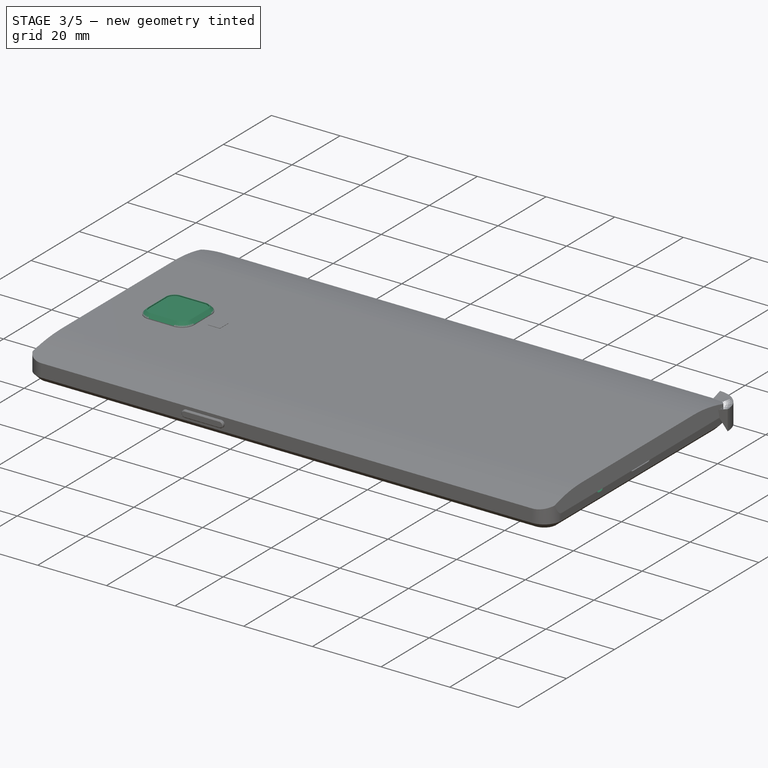
[diagram: stage 3 of 5 — iso view after this stage's code; geometry added in this stage tinted green]
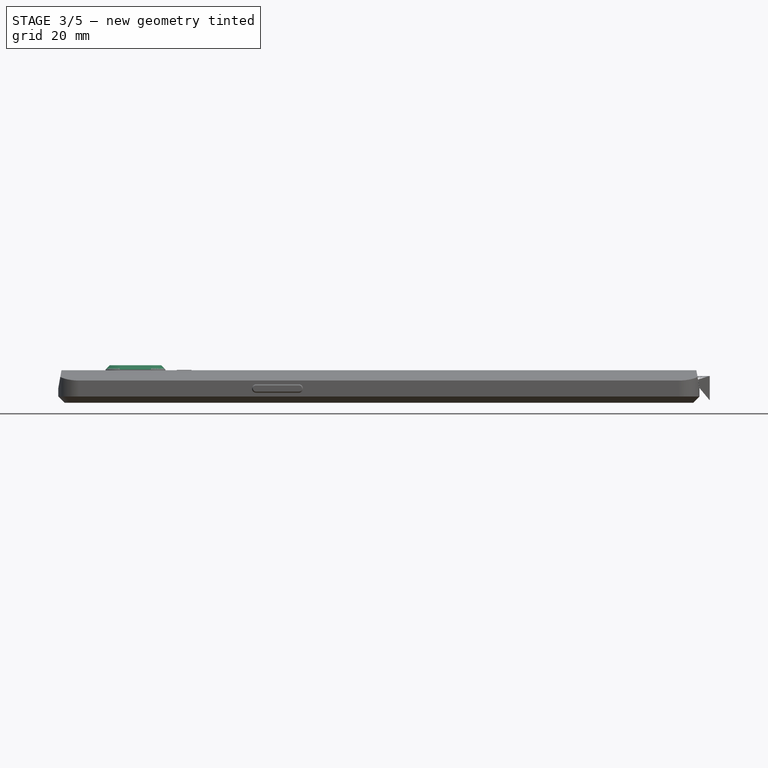
[diagram: stage 3 of 5 — front view after this stage's code; geometry added in this stage tinted green]
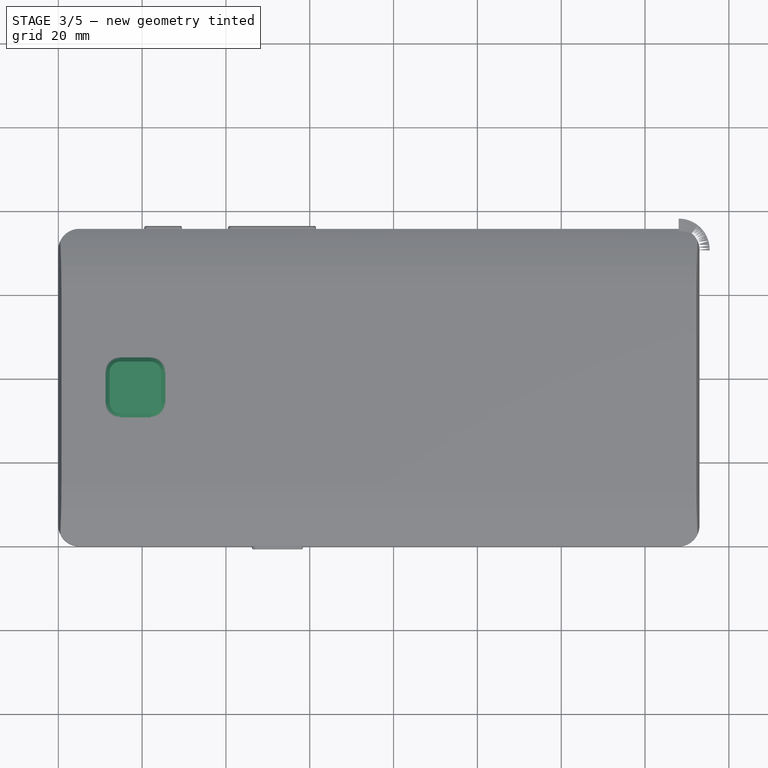
[diagram: stage 3 of 5 — top view after this stage's code; geometry added in this stage tinted green]
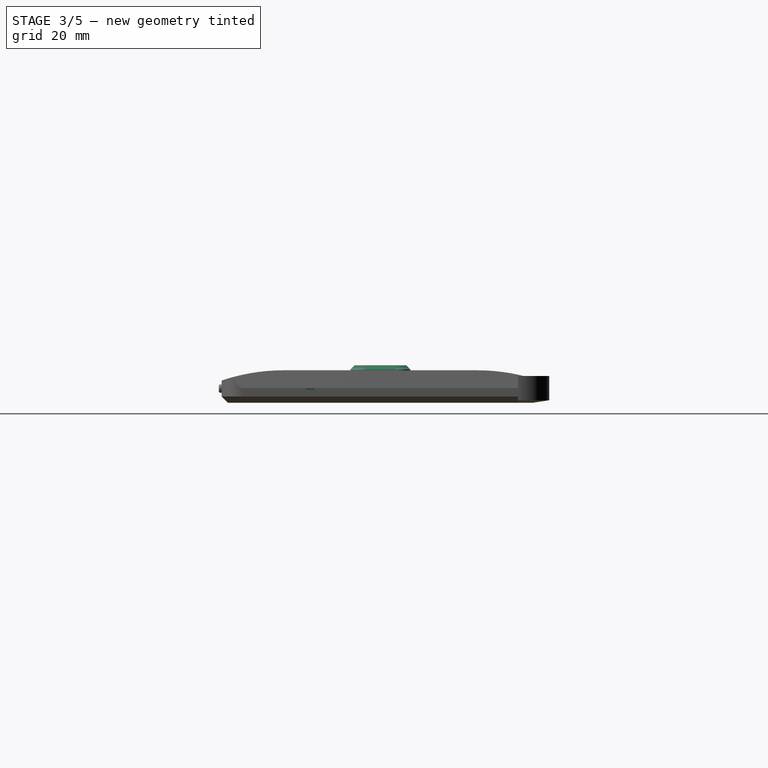
[diagram: stage 3 of 5 — right view after this stage's code; geometry added in this stage tinted green]
FEATURE [Sketcher::SketchObject] Sketch014
  ExternalGeometry = -> [Pad005]
  MapMode = 5
  Placement = pos=(153,0,0) rot=(0.57735,0.57735,0.57735;2.0944rad)
  Support = -> [Pad005]
  sketch-geometry (3):
    g0: Circle CenterX=61.25 CenterY=4.625 CenterZ=0 NormalX=0 NormalY=0 NormalZ=1 AngleXU=0 Radius=1
    g1: LineSegment [constr] StartX=61.25 StartY=7.75 StartZ=0 EndX=61.25 EndY=4.625 EndZ=0
    g2: LineSegment [constr] StartX=61.25 StartY=4.625 StartZ=0 EndX=61.25 EndY=1.5 EndZ=0
  constraints (9):
    c: PointOnObject(g1,g-3)
    c: Coincident(g1,g0)
    c: Coincident(g2,g0)
    c: PointOnObject(g2,g-4)
    c: Vertical(g2)
    c: Equal(g2,g1)
    c: Vertical(g1)
    c: Radius(g0) = 1
    c: Distance(g0,g-5) = 14.5
FEATURE [PartDesign::Pocket] Pocket004  label="SpeakerHole"
  BaseFeature = -> Pad005
  Length = 5
  Length2 = 100
  Placement = pos=(0,0,0) rot=(0.57735,0.57735,0.57735;2.0944rad)
  Profile = -> Sketch014
  Type = 0
FEATURE [PartDesign::LinearPattern] LinearPattern  label="SpeakerHoles"
  BaseFeature = -> Pocket004
  Direction = -> Y_Axis
  Length = 12
  Occurrences = 6
  Originals = -> [Pocket004]
  Placement = pos=(0,0,0) rot=(0.57735,0.57735,0.57735;2.0944rad)
  Reversed = true
FEATURE [Sketcher::SketchObject] Sketch015
  ExternalGeometry = -> [LinearPattern,Sketch012]
  MapMode = 5
  Placement = pos=(153,0,0) rot=(0.57735,0.57735,0.57735;2.0944rad)
  Support = -> [LinearPattern]
  sketch-geometry (3):
    g0: Circle CenterX=21.075 CenterY=4.625 CenterZ=0 NormalX=0 NormalY=0 NormalZ=1 AngleXU=0 Radius=1.7
    g1: LineSegment [constr] StartX=21.075 StartY=4.625 StartZ=0 EndX=34.875 EndY=4.625 EndZ=0
    g2: GeomPoint X=33.475 Y=4.625 Z=0
  constraints (7):
    c: Coincident(g1,g0)
    c: Coincident(g1,g-4)
    c: Horizontal(g1)
    c: PointOnObject(g2,g-4)
    c: PointOnObject(g2,g1)
    c: DistanceX(g0,g2) = 12.4
    c: Radius(g0) = 1.7
FEATURE [PartDesign::Pocket] Pocket005  label="HeadphoneJack"
  BaseFeature = -> LinearPattern
  Length = 10
  Length2 = 100
  Placement = pos=(0,0,0) rot=(0.57735,0.57735,0.57735;2.0944rad)
  Profile = -> Sketch015
  Type = 0
FEATURE [Sketcher::SketchObject] Sketch016
  ExternalGeometry = -> [Pocket005]
  MapMode = 5
  Placement = pos=(0,0,7.75) rot=(0,0,-1;1.5708rad)
  Support = -> [Pocket005]
  sketch-geometry (17):
    g0: LineSegment [constr] StartX=-45.025 StartY=11.2494 StartZ=0 EndX=-30.725 EndY=11.2494 EndZ=0
    g1: LineSegment [constr] StartX=-30.725 StartY=11.2494 StartZ=0 EndX=-30.725 EndY=25.5494 EndZ=0
    g2: LineSegment [constr] StartX=-30.725 StartY=25.5494 StartZ=0 EndX=-45.025 EndY=25.5494 EndZ=0
    g3: LineSegment [constr] StartX=-45.025 StartY=25.5494 StartZ=0 EndX=-45.025 EndY=11.2494 EndZ=0
    g4: LineSegment [constr] StartX=-45.025 StartY=25.5494 StartZ=0 EndX=-30.725 EndY=11.2494 EndZ=0
    g5: LineSegment [constr] StartX=-45.025 StartY=11.2494 StartZ=0 EndX=-30.725 EndY=25.5494 EndZ=0
    g6: GeomPoint X=-37.875 Y=18.3994 Z=0
    g7: ArcOfCircle CenterX=-41.525 CenterY=22.0494 CenterZ=0 NormalX=0 NormalY=0 NormalZ=1 AngleXU=0 Radius=3.5 StartAngle=1.5708 EndAngle=3.14159
    g8: ArcOfCircle CenterX=-34.225 CenterY=22.0494 CenterZ=0 NormalX=0 NormalY=0 NormalZ=1 AngleXU=0 Radius=3.5 StartAngle=1.36715e-06 EndAngle=1.5708
    g9: ArcOfCircle CenterX=-41.525 CenterY=14.7494 CenterZ=0 NormalX=0 NormalY=0 NormalZ=1 AngleXU=0 Radius=3.5 StartAngle=3.14159 EndAngle=4.71239
    g10: ArcOfCircle CenterX=-34.225 CenterY=14.7494 CenterZ=0 NormalX=0 NormalY=0 NormalZ=1 AngleXU=0 Radius=3.5 StartAngle=4.71239 EndAngle=6.28318
    g11: LineSegment StartX=-41.525 StartY=25.5494 StartZ=0 EndX=-34.225 EndY=25.5494 EndZ=0
    g12: LineSegment StartX=-30.725 StartY=22.0494 StartZ=0 EndX=-30.725 EndY=14.7494 EndZ=0
    g13: LineSegment StartX=-45.025 StartY=14.7494 StartZ=0 EndX=-45.025 EndY=22.0494 EndZ=0
    g14: LineSegment StartX=-34.225 StartY=11.2494 StartZ=0 EndX=-41.525 EndY=11.2494 EndZ=0
    g15: LineSegment [constr] StartX=-60.9514 StartY=0.74939 StartZ=0 EndX=-45.025 EndY=11.2494 EndZ=0
    g16: LineSegment [constr] StartX=-30.725 StartY=11.2494 StartZ=0 EndX=-14.7986 EndY=0.74939 EndZ=0
  constraints (51):
    c: Coincident(g0,g1)
    c: Coincident(g1,g2)
    c: Coincident(g2,g3)
    c: Coincident(g3,g0)
    c: Horizontal(g0)
    c: Horizontal(g2)
    c: Vertical(g1)
    c: Vertical(g3)
    c: Coincident(g4,g2)
    c: Coincident(g4,g0)
    c: Coincident(g5,g0)
    c: Coincident(g5,g1)
    c: PointOnObject(g6,g4)
    c: PointOnObject(g6,g5)
    c: PointOnObject(g7,g3)
    c: PointOnObject(g7,g2)
    c: PointOnObject(g7,g4)
    c: PointOnObject(g8,g5)
    c: PointOnObject(g8,g2)
    c: PointOnObject(g8,g1)
    c: PointOnObject(g9,g5)
    c: PointOnObject(g9,g0)
    c: PointOnObject(g9,g3)
    c: PointOnObject(g10,g4)
    c: PointOnObject(g10,g0)
    c: PointOnObject(g10,g1)
    c: Radius(g7) = 3.5
    c: Equal(g7,g8)
    c: Equal(g7,g10)
    c: Equal(g7,g9)
    c: Tangent(g7,g2)
    c: Tangent(g8,g2)
    c: Tangent(g10,g1)
    c: Tangent(g10,g0)
    c: Tangent(g9,g0)
    c: Distance(g0,g0) = 14.3
    c: Equal(g0,g3)
    c: Coincident(g11,g7)
    c: Coincident(g11,g8)
    c: Coincident(g12,g8)
    c: Coincident(g12,g10)
    c: Coincident(g13,g9)
    c: Coincident(g13,g7)
    c: Coincident(g14,g10)
    c: Coincident(g14,g9)
    c: Distance(g9,g-3) = 10.5
    c: Coincident(g15,g-3)
    c: Coincident(g15,g0)
    c: Coincident(g16,g0)
    c: Coincident(g16,g-3)
    c: Equal(g16,g15)
FEATURE [PartDesign::Pad] Pad006  label="Camera"
  BaseFeature = -> Pocket005
  Length = 1.2
  Length2 = 100
  Placement = pos=(0,0,0) rot=(0.57735,0.57735,0.57735;2.0944rad)
  Profile = -> Sketch016
  Type = 0
FEATURE [PartDesign::Chamfer] Chamfer004  label="CameraChamfer"
  Base = -> Pad006 [Face68]
  BaseFeature = -> Pad006
  Placement = pos=(0,0,0) rot=(0.57735,0.57735,0.57735;2.0944rad)
  Size = 1
FEATURE [Sketcher::SketchObject] Sketch017
  ExternalGeometry = -> [Chamfer004]
  MapMode = 5
  Placement = pos=(0,-1e-12,8.95) rot=(0,0,-1;1.5708rad)
  Support = -> [Chamfer004]
  sketch-geometry (8):
    g0: ArcOfCircle CenterX=-41.525 CenterY=22.0494 CenterZ=0 NormalX=0 NormalY=0 NormalZ=1 AngleXU=0 Radius=2.3 StartAngle=1.5708 EndAngle=3.14159
    g1: ArcOfCircle CenterX=-34.225 CenterY=22.0494 CenterZ=0 NormalX=0 NormalY=0 NormalZ=1 AngleXU=0 Radius=2.3 StartAngle=2.14942e-06 EndAngle=1.5708
    g2: ArcOfCircle CenterX=-34.225 CenterY=14.7494 CenterZ=0 NormalX=0 NormalY=0 NormalZ=1 AngleXU=0 Radius=2.3 StartAngle=4.71239 EndAngle=6.28319
    g3: ArcOfCircle CenterX=-41.525 CenterY=14.7494 CenterZ=0 NormalX=0 NormalY=0 NormalZ=1 AngleXU=0 Radius=2.3 StartAngle=3.14159 EndAngle=4.71239
    g4: LineSegment StartX=-31.925 StartY=22.0494 StartZ=0 EndX=-31.925 EndY=14.7494 EndZ=0
    g5: LineSegment StartX=-34.225 StartY=12.4494 StartZ=0 EndX=-41.525 EndY=12.4494 EndZ=0
    g6: LineSegment StartX=-43.825 StartY=14.7494 StartZ=0 EndX=-43.825 EndY=22.0494 EndZ=0
    g7: LineSegment StartX=-41.525 StartY=24.3494 StartZ=0 EndX=-34.225 EndY=24.3494 EndZ=0
  constraints (24):
    c: Coincident(g0,g-9)
    c: Coincident(g1,g-10)
    c: Coincident(g2,g-7)
    c: Coincident(g3,g-8)
    c: Radius(g2) = 2.3
    c: Equal(g2,g3)
    c: Equal(g2,g0)
    c: Equal(g2,g1)
    c: Coincident(g4,g1)
    c: Coincident(g4,g2)
    c: Vertical(g4)
    c: Coincident(g5,g2)
    c: Coincident(g5,g3)
    c: Horizontal(g5)
    c: Coincident(g6,g3)
    c: Coincident(g6,g0)
    c: Vertical(g6)
    c: Coincident(g7,g0)
    c: Coincident(g7,g1)
    c: Horizontal(g7)
    c: Tangent(g0,g7)
    c: Tangent(g3,g6)
    c: Tangent(g2,g5)
    c: Tangent(g1,g4)
FEATURE [PartDesign::Pocket] Pocket006  label="Camera001"
  BaseFeature = -> Chamfer004
  Length = 0.25
  Length2 = 100
  Placement = pos=(0,0,0) rot=(0.57735,0.57735,0.57735;2.0944rad)
  Profile = -> Sketch017
  Type = 0
FEATURE [Sketcher::SketchObject] Sketch019
  MapMode = 5
  Placement = pos=(0,0,7.75) rot=(0,0,-1;1.5708rad)
  sketch-geometry (3):
    g0: LineSegment [constr] StartX=-41.525 StartY=11.1612 StartZ=0 EndX=-37.875 EndY=6.66123 EndZ=0
    g1: LineSegment [constr] StartX=-34.225 StartY=11.1612 StartZ=0 EndX=-37.875 EndY=6.66123 EndZ=0
    g2: Circle CenterX=-37.875 CenterY=6.66123 CenterZ=0 NormalX=0 NormalY=0 NormalZ=1 AngleXU=0 Radius=0.4
  constraints (4):
    c: Coincident(g1,g2)
    c: Coincident(g0,g1)
    c: Equal(g0,g1)
    c: Radius(g2) = 0.4
FEATURE [PartDesign::Pocket] Pocket007  label="MicHoleTop"
  BaseFeature = -> Pocket006
  Length = 0.3
  Length2 = 100
  Placement = pos=(0,0,0) rot=(0.57735,0.57735,0.57735;2.0944rad)
  Profile = -> Sketch019
  Type = 0
FEATURE [Sketcher::SketchObject] Sketch020
  ExternalGeometry = -> [Pocket005,Sketch015,Sketch012]
  MapMode = 5
  Placement = pos=(153,0,0) rot=(0.57735,0.57735,0.57735;2.0944rad)
  Support = -> [Pocket005]
  sketch-geometry (3):
    g0: Circle CenterX=12.4154 CenterY=-5.45769 CenterZ=0 NormalX=0 NormalY=0 NormalZ=1 AngleXU=0 Radius=0.6
    g1: LineSegment [constr] StartX=12.4154 StartY=-5.45769 StartZ=0 EndX=12.4154 EndY=-10.9154 EndZ=0
    g2: LineSegment [constr] StartX=12.4154 StartY=-5.45769 StartZ=0 EndX=12.4154 EndY=0 EndZ=0
  constraints (6):
    c: Coincident(g1,g0)
    c: Coincident(g2,g0)
    c: Vertical(g2)
    c: Equal(g2,g1)
    c: Vertical(g1)
    c: Radius(g0) = 0.6
FEATURE [Sketcher::SketchObject] Sketch021
  ExternalGeometry = -> [Chamfer003]
  MapMode = 5
  Placement = pos=(0,76.45,2e-12) rot=(-0.57735,-0.57735,-0.57735;2.0944rad)
  Support = -> [Chamfer003]
  sketch-geometry (7):
    g0: LineSegment StartX=0.335523 StartY=17.4355 StartZ=0 EndX=6.7612 EndY=23.8612 EndZ=0
    g1: GeomPoint X=4.15 Y=21.25 Z=0
    g2: LineSegment [constr] StartX=0.11421 StartY=26.2142 StartZ=0 EndX=6.2605 EndY=32.3605 EndZ=0
    g3: GeomPoint X=4.15 Y=30.25 Z=0
    g4: LineSegment StartX=0.372098 StartY=23.5279 StartZ=0 EndX=6.86309 EndY=17.0369 EndZ=0
    g5: GeomPoint X=2.65 Y=21.25 Z=0
    g6: LineSegment [constr] StartX=2.65 StartY=21.25 StartZ=0 EndX=4.15 EndY=21.25 EndZ=0
  constraints (14):
    c: PointOnObject(g1,g0)
    c: PointOnObject(g1,g-3)
    c: Angle(g0) = 0.785398
    c: Distance(g1,g-3) = 0.25
    c: Angle(g2) = 0.785398
    c: PointOnObject(g3,g-3)
    c: PointOnObject(g3,g2)
    c: Distance(g1,g3) = 9
    c: Angle(g4) = -0.785398
    c: PointOnObject(g5,g4)
    c: PointOnObject(g5,g-4)
    c: Coincident(g6,g5)
    c: Coincident(g6,g1)
    c: Horizontal(g6)
FEATURE [PartDesign::Plane] DatumPlane  label="AlertSliderCorrugation"
  MapMode = 7
  Placement = pos=(17.4355,76.45,0.335523) rot=(-0.678598,0.678598,0.281085;3.68962rad)
  Support = -> [Sketch021]
FEATURE [Sketcher::SketchObject] Sketch022
  MapMode = 5
  Placement = pos=(17.4355,76.45,0.335523) rot=(-0.678598,0.678598,0.281085;3.68962rad)
  Support = -> [DatumPlane]
  sketch-geometry (4):
    g0: LineSegment StartX=-0.144338 StartY=0 StartZ=0 EndX=0 EndY=0.25 EndZ=0
    g1: LineSegment StartX=0 StartY=-0.25 StartZ=0 EndX=-0.144338 EndY=0 EndZ=0
    g2: LineSegment StartX=0 StartY=0.25 StartZ=0 EndX=0.144338 EndY=0 EndZ=0
    g3: LineSegment StartX=0.144338 StartY=0 StartZ=0 EndX=0 EndY=-0.25 EndZ=0
  constraints (12):
    c: PointOnObject(g0,g-1)
    c: PointOnObject(g0,g-2)
    c: PointOnObject(g1,g-2)
    c: Coincident(g1,g0)
    c: Equal(g0,g1)
    c: Angle(g0) = 1.0472
    c: Distance(g0,g1) = 0.5
    c: Coincident(g0,g2)
    c: Coincident(g2,g3)
    c: Coincident(g3,g1)
    c: PointOnObject(g2,g-1)
    c: Equal(g1,g3)
FEATURE [PartDesign::Plane] DatumPlane001  label="AlertSliderCorrugation001"
  MapMode = 7
  Placement = pos=(23.5279,76.45,0.372098) rot=(0.678598,0.678598,0.281085;2.59356rad)
  Support = -> [Sketch021]
FEATURE [Sketcher::SketchObject] Sketch024
  MapMode = 5
  Placement = pos=(23.5279,76.45,0.372098) rot=(0.678598,0.678598,0.281085;2.59356rad)
  Support = -> [DatumPlane001]
  sketch-geometry (4):
    g0: LineSegment StartX=0 StartY=-0.25 StartZ=0 EndX=-0.144338 EndY=0 EndZ=0
    g1: LineSegment StartX=-0.144338 StartY=0 StartZ=0 EndX=0 EndY=0.25 EndZ=0
    g2: LineSegment StartX=0 StartY=0.25 StartZ=0 EndX=0.144338 EndY=0 EndZ=0
    g3: LineSegment StartX=0.144338 StartY=0 StartZ=0 EndX=0 EndY=-0.25 EndZ=0
  constraints (13):
    c: Coincident(g0,g1)
    c: Coincident(g1,g2)
    c: Coincident(g2,g3)
    c: Coincident(g3,g0)
    c: PointOnObject(g0,g-1)
    c: PointOnObject(g1,g-2)
    c: PointOnObject(g2,g-1)
    c: PointOnObject(g0,g-2)
    c: Equal(g1,g0)
    c: Equal(g0,g3)
    c: Equal(g3,g2)
    c: Distance(g1,g0) = 0.5
    c: Angle(g1) = 1.0472
FEATURE [Sketcher::SketchObject] Sketch034
  ExternalGeometry = -> [Pocket007]
  MapMode = 5
  Placement = pos=(0,0,7.75) rot=(0,0,-1;1.5708rad)
  Support = -> [Pocket007]
  sketch-geometry (8):
    g0: LineSegment StartX=-39.625 StartY=28.2494 StartZ=0 EndX=-36.125 EndY=28.2494 EndZ=0
    g1: LineSegment StartX=-36.125 StartY=28.2494 StartZ=0 EndX=-36.125 EndY=31.7494 EndZ=0
    g2: LineSegment StartX=-36.125 StartY=31.7494 StartZ=0 EndX=-39.625 EndY=31.7494 EndZ=0
    g3: LineSegment StartX=-39.625 StartY=31.7494 StartZ=0 EndX=-39.625 EndY=28.2494 EndZ=0
    g4: LineSegment [constr] StartX=-39.625 StartY=31.7494 StartZ=0 EndX=-36.125 EndY=28.2494 EndZ=0
    g5: LineSegment [constr] StartX=-39.625 StartY=28.2494 StartZ=0 EndX=-36.125 EndY=31.7494 EndZ=0
    g6: GeomPoint X=-37.875 Y=29.9994 Z=0
    g7: Circle [constr] CenterX=-37.875 CenterY=29.9994 CenterZ=0 NormalX=0 NormalY=0 NormalZ=1 AngleXU=0 Radius=37.257
  constraints (20):
    c: Coincident(g0,g1)
    c: Coincident(g1,g2)
    c: Coincident(g2,g3)
    c: Coincident(g3,g0)
    c: Horizontal(g0)
    c: Horizontal(g2)
    c: Vertical(g1)
    c: Vertical(g3)
    c: Coincident(g4,g2)
    c: Coincident(g4,g0)
    c: Coincident(g5,g0)
    c: Coincident(g5,g1)
    c: PointOnObject(g6,g4)
    c: PointOnObject(g6,g5)
    c: Coincident(g7,g6)
    c: PointOnObject(g-3,g7)
    c: PointOnObject(g-3,g7)
    c: Equal(g0,g1)
    c: Distance(g2) = 3.5
    c: DistanceY(g-3,g0) = 27.5
FEATURE [PartDesign::Pad] Pad009
  BaseFeature = -> Pocket007
  Length = 0.1
  Length2 = 100
  Placement = pos=(0,0,0) rot=(0.57735,0.57735,0.57735;2.0944rad)
  Profile = -> Sketch034
  Type = 0
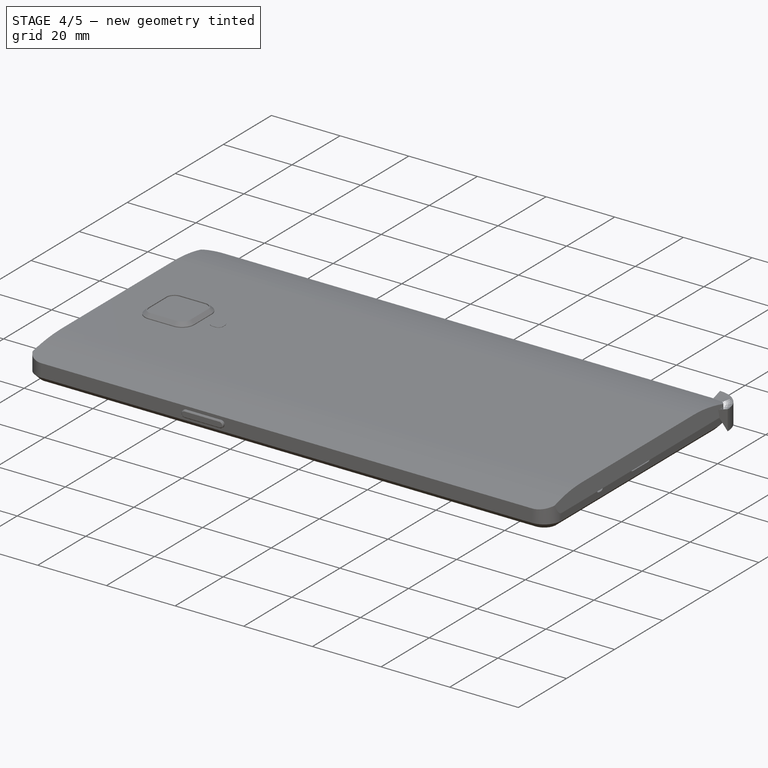
[diagram: stage 4 of 5 — iso view after this stage's code; geometry added in this stage tinted green]
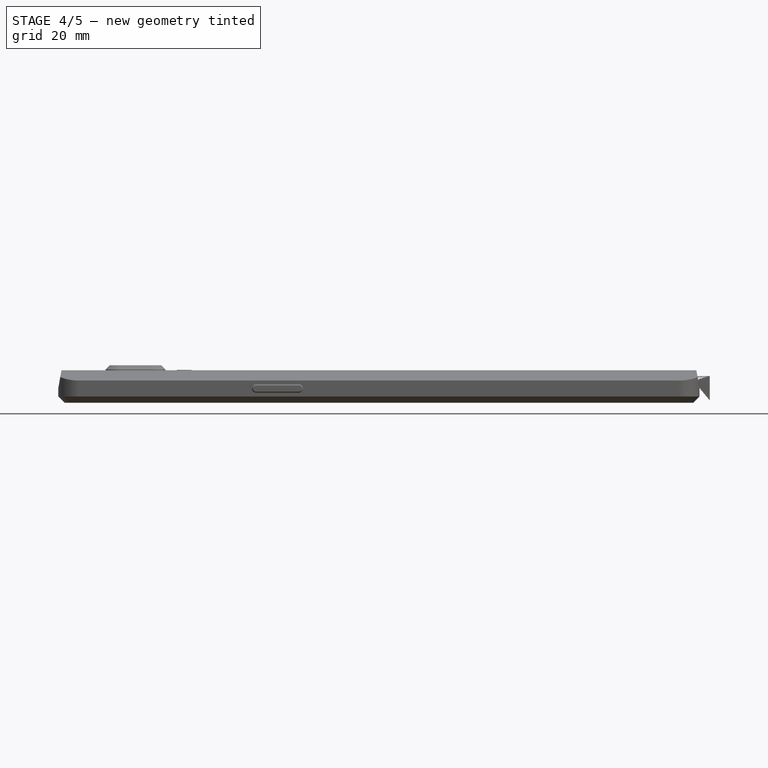
[diagram: stage 4 of 5 — front view after this stage's code; geometry added in this stage tinted green]
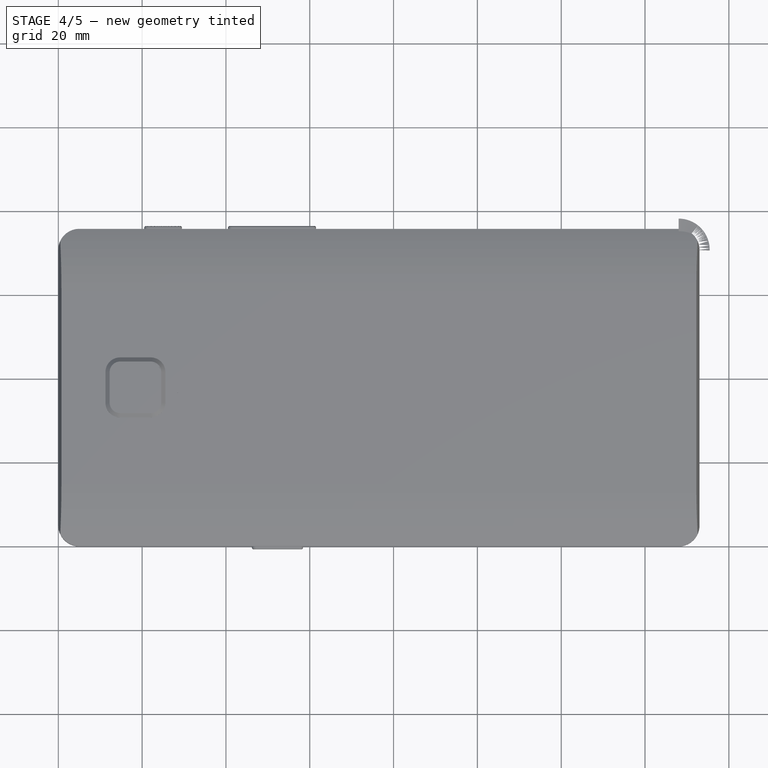
[diagram: stage 4 of 5 — top view after this stage's code; geometry added in this stage tinted green]
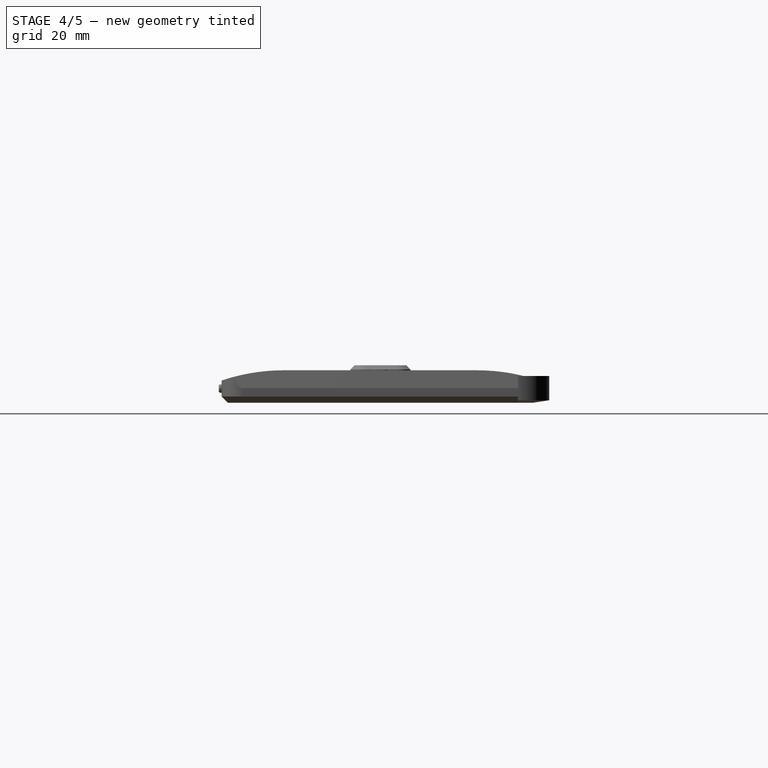
[diagram: stage 4 of 5 — right view after this stage's code; geometry added in this stage tinted green]
FEATURE [PartDesign::Fillet] Fillet
  Base = -> Pad009 [Edge83,Edge81,Edge85,Edge79]
  BaseFeature = -> Pad009
  Placement = pos=(0,0,0) rot=(0.57735,0.57735,0.57735;2.0944rad)
  Radius = 1.3
FEATURE [PartDesign::Pocket] Pocket008  label="MicHoleBot"
  BaseFeature = -> Fillet
  Length = 5
  Length2 = 100
  Placement = pos=(0,0,0) rot=(0.57735,0.57735,0.57735;2.0944rad)
  Profile = -> Sketch020
  Type = 0
FEATURE [PartDesign::SubtractivePipe] SubtractivePipe  label="AlertSliderCorrugation002"
  AuxilleryCurvelinear = true
  AuxillerySpineTangent = false
  BaseFeature = -> Pocket008
  Binormal = (0,0,0)
  Mode = 0
  Placement = pos=(0,0,0) rot=(0.57735,0.57735,0.57735;2.0944rad)
  Profile = -> Sketch022
  Spine = -> Sketch021 [Edge1]
  SpineTangent = false
  Transformation = 0
  Transition = 0
FEATURE [PartDesign::SubtractivePipe] SubtractivePipe001  label="AlertSliderCorrugation003"
  AuxilleryCurvelinear = true
  AuxillerySpineTangent = false
  BaseFeature = -> SubtractivePipe
  Binormal = (0,0,0)
  Mode = 0
  Placement = pos=(0,0,0) rot=(0.57735,0.57735,0.57735;2.0944rad)
  Profile = -> Sketch024
  Spine = -> Sketch021 [Edge2]
  SpineTangent = false
  Transformation = 0
  Transition = 0
FEATURE [PartDesign::LinearPattern] LinearPattern001  label="AlertSliderCorrugation004"
  BaseFeature = -> SubtractivePipe001
  Direction = -> X_Axis
  Length = 9
  Occurrences = 12
  Originals = -> [SubtractivePipe,SubtractivePipe001]
  Placement = pos=(0,0,0) rot=(0.57735,0.57735,0.57735;2.0944rad)
FEATURE [Sketcher::SketchObject] Sketch026
  ExternalGeometry = -> [LinearPattern001]
  MapMode = 5
  Placement = pos=(0,0,0) rot=(-0.57735,-0.57735,0.57735;4.18879rad)
  Support = -> [LinearPattern001]
  sketch-geometry (5):
    g0: Circle CenterX=-3.65 CenterY=38.75 CenterZ=0 NormalX=0 NormalY=0 NormalZ=1 AngleXU=0 Radius=0.6
    g1: LineSegment [constr] StartX=-3.65 StartY=38.75 StartZ=0 EndX=-2 EndY=38.75 EndZ=0
    g2: LineSegment [constr] StartX=-3.65 StartY=38.75 StartZ=0 EndX=-5.3 EndY=38.75 EndZ=0
    g3: LineSegment [constr] StartX=-3.65 StartY=38.75 StartZ=0 EndX=-3.65 EndY=47.2 EndZ=0
    g4: GeomPoint X=-3.65 Y=46.2 Z=0
  constraints (9):
    c: Coincident(g1,g0)
    c: Coincident(g2,g0)
    c: Equal(g2,g1)
    c: Horizontal(g1)
    c: Horizontal(g2)
    c: Coincident(g3,g0)
    c: PointOnObject(g4,g3)
    c: DistanceY(g0,g4) = 7.45
    c: Radius(g0) = 0.6
FEATURE [PartDesign::Pocket] Pocket009  label="SimSlotKeyHole"
  BaseFeature = -> LinearPattern001
  Length = 6
  Length2 = 100
  Placement = pos=(0,0,0) rot=(0.57735,0.57735,0.57735;2.0944rad)
  Profile = -> Sketch026
  Type = 0
FEATURE [Sketcher::SketchObject] Sketch027
  ExternalGeometry = -> [Pocket009]
  MapMode = 5
  Placement = pos=(0,0,0) rot=(0.57735,0.57735,-0.57735;2.0944rad)
  Support = -> [LinearPattern001]
  sketch-geometry (4):
    g0: ArcOfCircle CenterX=-3.62035 CenterY=36.9502 CenterZ=0 NormalX=0 NormalY=0 NormalZ=1 AngleXU=0 Radius=0.9 StartAngle=0 EndAngle=3.14159
    g1: ArcOfCircle CenterX=-3.62035 CenterY=21.7502 CenterZ=0 NormalX=0 NormalY=0 NormalZ=1 AngleXU=0 Radius=0.9 StartAngle=3.14159 EndAngle=6.28319
    g2: LineSegment StartX=-4.52035 StartY=36.9502 StartZ=0 EndX=-4.52035 EndY=21.7502 EndZ=0
    g3: LineSegment StartX=-2.72035 StartY=36.9502 StartZ=0 EndX=-2.72035 EndY=21.7502 EndZ=0
  constraints (8):
    c: Tangent(g0,g3) = 1.5708
    c: Tangent(g0,g2) = -1.5708
    c: Tangent(g2,g1) = -1.5708
    c: Tangent(g3,g1) = 1.5708
    c: Vertical(g2)
    c: Equal(g0,g1)
    c: Radius(g0) = 0.9
    c: DistanceY(g3,g3) = 15.2
FEATURE [PartDesign::Pocket] Pocket010  label="SimSlotHole"
  BaseFeature = -> Pocket009
  Length = 0.5
  Length2 = 100
  Placement = pos=(0,0,0) rot=(0.57735,0.57735,0.57735;2.0944rad)
  Profile = -> Sketch027
  Type = 0
FEATURE [Sketcher::SketchObject] Sketch028
  ExternalGeometry = -> [Pocket010]
  MapMode = 5
  Placement = pos=(0,0,0) rot=(0.57735,0.57735,-0.57735;2.0944rad)
  Support = -> [Pocket010]
  sketch-geometry (5):
    g0: ArcOfCircle CenterX=-3.62035 CenterY=36.9502 CenterZ=0 NormalX=0 NormalY=0 NormalZ=1 AngleXU=0 Radius=0.89 StartAngle=0 EndAngle=3.14159
    g1: ArcOfCircle CenterX=-3.62035 CenterY=21.7502 CenterZ=0 NormalX=0 NormalY=0 NormalZ=1 AngleXU=0 Radius=0.89 StartAngle=3.14159 EndAngle=6.28319
    g2: LineSegment StartX=-4.51035 StartY=36.9502 StartZ=0 EndX=-4.51035 EndY=21.7502 EndZ=0
    g3: LineSegment StartX=-2.73035 StartY=36.9502 StartZ=0 EndX=-2.73035 EndY=21.7502 EndZ=0
    g4: LineSegment [constr] StartX=-4.51035 StartY=21.7502 StartZ=0 EndX=-4.52035 EndY=21.7502 EndZ=0
  constraints (9):
    c: Tangent(g0,g3) = 1.5708
    c: Tangent(g0,g2) = -1.5708
    c: Tangent(g2,g1) = -1.5708
    c: Tangent(g3,g1) = 1.5708
    c: Vertical(g2)
    c: Equal(g0,g1)
    c: Coincident(g4,g1)
    c: Horizontal(g4)
    c: DistanceX(g4,g4) = 0.01
FEATURE [PartDesign::Pad] Pad008  label="SimSlotInsert"
  BaseFeature = -> Pocket010
  Length = 0.5
  Length2 = 100
  Placement = pos=(0,0,0) rot=(0.57735,0.57735,0.57735;2.0944rad)
  Profile = -> Sketch028
  Refine = true
  Reversed = true
  Type = 0
FEATURE [Sketcher::SketchObject] Sketch029
  ExternalGeometry = -> [Pad008]
  MapMode = 5
  Placement = pos=(0,0,7.75) rot=(0,0,-1;1.5708rad)
  Support = -> [Pad008]
  sketch-geometry (37):
    g0: LineSegment [constr] StartX=-14.7986 StartY=46.0494 StartZ=0 EndX=-37.875 EndY=46.0494 EndZ=0
    g1: LineSegment [constr] StartX=-37.875 StartY=46.0494 StartZ=0 EndX=-60.9514 EndY=46.0494 EndZ=0
    g2: LineSegment StartX=-33.575 StartY=54.6494 StartZ=0 EndX=-42.175 EndY=54.6494 EndZ=0
    g3: LineSegment [constr] StartX=-42.175 StartY=54.6494 StartZ=0 EndX=-42.175 EndY=46.0494 EndZ=0
    g4: LineSegment StartX=-33.575 StartY=46.0494 StartZ=0 EndX=-33.575 EndY=54.6494 EndZ=0
    g5: LineSegment StartX=-38.875 StartY=46.8494 StartZ=0 EndX=-34.375 EndY=46.8494 EndZ=0
    g6: LineSegment StartX=-34.375 StartY=46.8494 StartZ=0 EndX=-34.375 EndY=53.8494 EndZ=0
    g7: LineSegment StartX=-34.375 StartY=53.8494 StartZ=0 EndX=-41.375 EndY=53.8494 EndZ=0
    g8: LineSegment StartX=-41.375 StartY=53.8494 StartZ=0 EndX=-41.375 EndY=49.3494 EndZ=0
    g9: LineSegment StartX=-42.175 StartY=54.6494 StartZ=0 EndX=-42.175 EndY=49.3494 EndZ=0
    g10: LineSegment StartX=-42.175 StartY=49.3494 StartZ=0 EndX=-41.375 EndY=49.3494 EndZ=0
    g11: LineSegment StartX=-33.575 StartY=46.0494 StartZ=0 EndX=-38.875 EndY=46.0494 EndZ=0
    g12: LineSegment StartX=-38.875 StartY=46.0494 StartZ=0 EndX=-38.875 EndY=46.8494 EndZ=0
    g13: LineSegment StartX=-40.575 StartY=46.8494 StartZ=0 EndX=-40.575 EndY=46.0494 EndZ=0
    g14: LineSegment StartX=-40.575 StartY=46.0494 StartZ=0 EndX=-41.375 EndY=46.0494 EndZ=0
    g15: LineSegment StartX=-41.375 StartY=46.0494 StartZ=0 EndX=-41.375 EndY=45.2494 EndZ=0
    g16: LineSegment StartX=-41.375 StartY=45.2494 StartZ=0 EndX=-42.175 EndY=45.2494 EndZ=0
    g17: LineSegment StartX=-42.175 StartY=45.2494 StartZ=0 EndX=-42.175 EndY=46.0494 EndZ=0
    g18: LineSegment StartX=-42.175 StartY=46.0494 StartZ=0 EndX=-42.975 EndY=46.0494 EndZ=0
    g19: LineSegment StartX=-42.975 StartY=46.0494 StartZ=0 EndX=-42.975 EndY=46.8494 EndZ=0
    g20: LineSegment StartX=-42.975 StartY=46.8494 StartZ=0 EndX=-42.175 EndY=46.8494 EndZ=0
    g21: LineSegment StartX=-42.175 StartY=46.8494 StartZ=0 EndX=-42.175 EndY=47.6494 EndZ=0
    g22: LineSegment StartX=-42.175 StartY=47.6494 StartZ=0 EndX=-41.375 EndY=47.6494 EndZ=0
    g23: LineSegment StartX=-41.375 StartY=47.6494 StartZ=0 EndX=-41.375 EndY=46.8494 EndZ=0
    g24: LineSegment StartX=-41.375 StartY=46.8494 StartZ=0 EndX=-40.575 EndY=46.8494 EndZ=0
    g25: GeomPoint X=-41.375 Y=46.8494 Z=0
    g26: LineSegment StartX=-36.725 StartY=52.5994 StartZ=0 EndX=-36.725 EndY=51.7994 EndZ=0
    g27: LineSegment StartX=-36.725 StartY=51.7994 StartZ=0 EndX=-37.525 EndY=51.7994 EndZ=0
    g28: LineSegment StartX=-37.525 StartY=51.7994 StartZ=0 EndX=-37.525 EndY=48.9994 EndZ=0
    g29: LineSegment StartX=-37.525 StartY=48.9994 StartZ=0 EndX=-36.725 EndY=48.9994 EndZ=0
    g30: LineSegment StartX=-36.725 StartY=48.9994 StartZ=0 EndX=-36.725 EndY=48.1994 EndZ=0
    g31: LineSegment StartX=-36.725 StartY=48.1994 StartZ=0 EndX=-38.325 EndY=48.1994 EndZ=0
    g32: LineSegment StartX=-38.325 StartY=48.1994 StartZ=0 EndX=-38.325 EndY=51.7994 EndZ=0
    g33: LineSegment StartX=-38.325 StartY=51.7994 StartZ=0 EndX=-39.125 EndY=51.7994 EndZ=0
    g34: LineSegment StartX=-39.125 StartY=51.7994 StartZ=0 EndX=-39.125 EndY=52.5994 EndZ=0
    g35: LineSegment StartX=-39.125 StartY=52.5994 StartZ=0 EndX=-36.725 EndY=52.5994 EndZ=0
    g36: LineSegment [constr] StartX=-37.525 StartY=51.7994 StartZ=0 EndX=-38.325 EndY=51.7994 EndZ=0
  constraints (111):
    c: PointOnObject(g0,g-3)
    c: Coincident(g1,g0)
    c: PointOnObject(g1,g-4)
    c: Equal(g1,g0)
    c: Horizontal(g1)
    c: Horizontal(g0)
    c: Distance(g0,g-5) = 20.5
    c: Coincident(g2,g3)
    c: Coincident(g4,g2)
    c: Horizontal(g2)
    c: Vertical(g3)
    c: Vertical(g4)
    c: PointOnObject(g3,g1)
    c: Symmetric(g3,g4,g0)
    c: Equal(g4,g2)
    c: Distance(g4) = 8.6
    c: Horizontal(g5)
    c: Coincident(g5,g6)
    c: Vertical(g6)
    c: Coincident(g6,g7)
    c: Horizontal(g7)
    c: Coincident(g7,g8)
    c: Vertical(g8)
    c: DistanceY(g4,g5) = 0.8
    c: DistanceX(g5,g4) = 0.8
    c: DistanceX(g2,g7) = 0.8
    c: DistanceY(g7,g2) = 0.8
    c: DistanceY(g3,g8) = 3.3
    c: DistanceX(g3,g5) = 3.3
    c: Coincident(g9,g2)
    c: PointOnObject(g9,g3)
    c: Coincident(g10,g9)
    c: Coincident(g10,g8)
    c: Horizontal(g10)
    c: Coincident(g11,g4)
    c: PointOnObject(g11,g1)
    c: Coincident(g12,g11)
    c: Coincident(g12,g5)
    c: Vertical(g12)
    c: Vertical(g13)
    c: Coincident(g13,g14)
    c: Coincident(g14,g15)
    c: Coincident(g15,g16)
    c: Coincident(g16,g17)
    c: Coincident(g17,g18)
    c: Coincident(g18,g19)
    c: Coincident(g19,g20)
    c: Coincident(g20,g21)
    c: Vertical(g21)
    c: Coincident(g21,g22)
    c: Horizontal(g22)
    c: Coincident(g22,g23)
    c: Vertical(g23)
    c: Coincident(g23,g24)
    c: Coincident(g24,g13)
    c: Horizontal(g16)
    c: Horizontal(g14)
    c: Horizontal(g24)
    c: Horizontal(g20)
    c: Horizontal(g18)
    c: Vertical(g19)
    c: Vertical(g17)
    c: Vertical(g15)
    c: Equal(g21,g22)
    c: Equal(g22,g23)
    c: Equal(g23,g24)
    c: Equal(g24,g13)
    c: Equal(g13,g14)
    c: Equal(g14,g15)
    c: Equal(g15,g16)
    c: Equal(g16,g17)
    c: Equal(g17,g18)
    c: Equal(g18,g19)
    c: Equal(g19,g20)
    c: DistanceY(g13,g13) = 0.8
    c: PointOnObject(g25,g8)
    c: PointOnObject(g25,g5)
    c: Coincident(g23,g25)
    c: Vertical(g26)
    c: Coincident(g26,g27)
    c: Horizontal(g27)
    c: Coincident(g27,g28)
    c: Vertical(g28)
    c: Coincident(g28,g29)
    c: Horizontal(g29)
    c: Coincident(g29,g30)
    c: Vertical(g30)
    c: Coincident(g30,g31)
    c: Horizontal(g31)
    c: Coincident(g31,g32)
    c: Vertical(g32)
    c: Coincident(g32,g33)
    c: Horizontal(g33)
    c: Coincident(g33,g34)
    c: Vertical(g34)
    c: Coincident(g34,g35)
    c: Coincident(g35,g26)
    c: Horizontal(g35)
    c: Coincident(g36,g27)
    c: Coincident(g36,g32)
    c: Equal(g26,g27)
    c: Equal(g27,g29)
    c: Equal(g29,g30)
    c: Equal(g30,g33)
    c: Equal(g33,g34)
    c: Equal(g34,g26)
    c: DistanceY(g28,g28) = 2.8
    c: DistanceY(g26,g26) = 0.8
    c: DistanceY(g26,g6) = 1.25
    c: DistanceX(g26,g6) = 2.35
    c: Equal(g36,g27)
FEATURE [PartDesign::Pocket] Pocket011  label="OPLogo"
  BaseFeature = -> Pad008
  Length = 0.05
  Length2 = 100
  Placement = pos=(0,0,0) rot=(0.57735,0.57735,0.57735;2.0944rad)
  Profile = -> Sketch029
  Type = 0
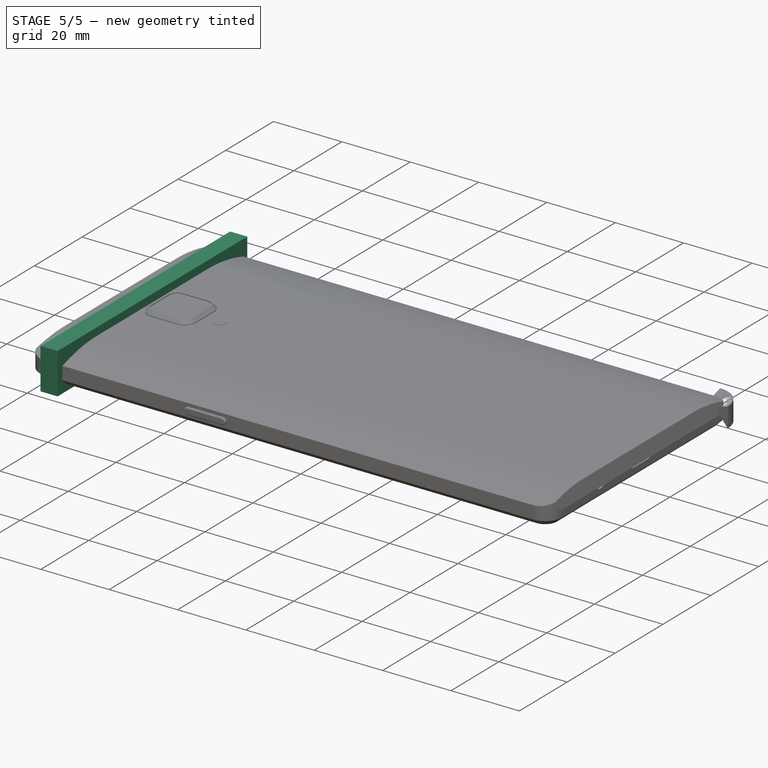
[diagram: stage 5 of 5 — iso view after this stage's code; geometry added in this stage tinted green]
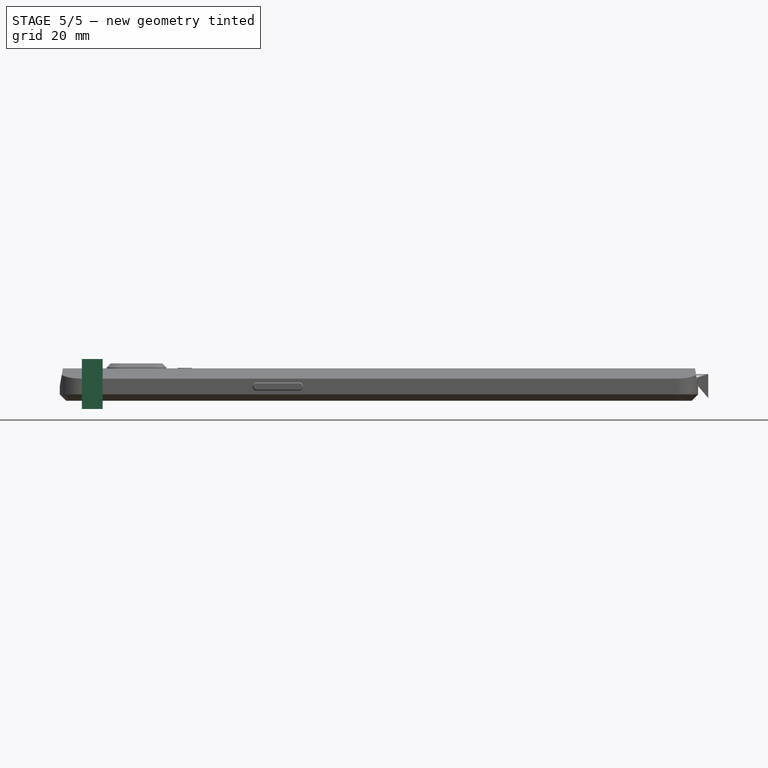
[diagram: stage 5 of 5 — front view after this stage's code; geometry added in this stage tinted green]
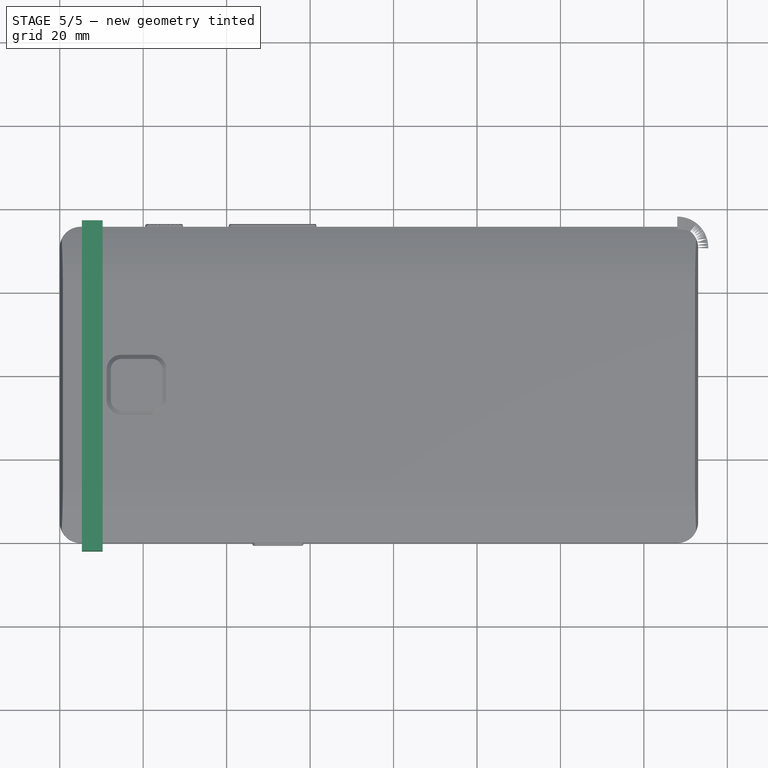
[diagram: stage 5 of 5 — top view after this stage's code; geometry added in this stage tinted green]
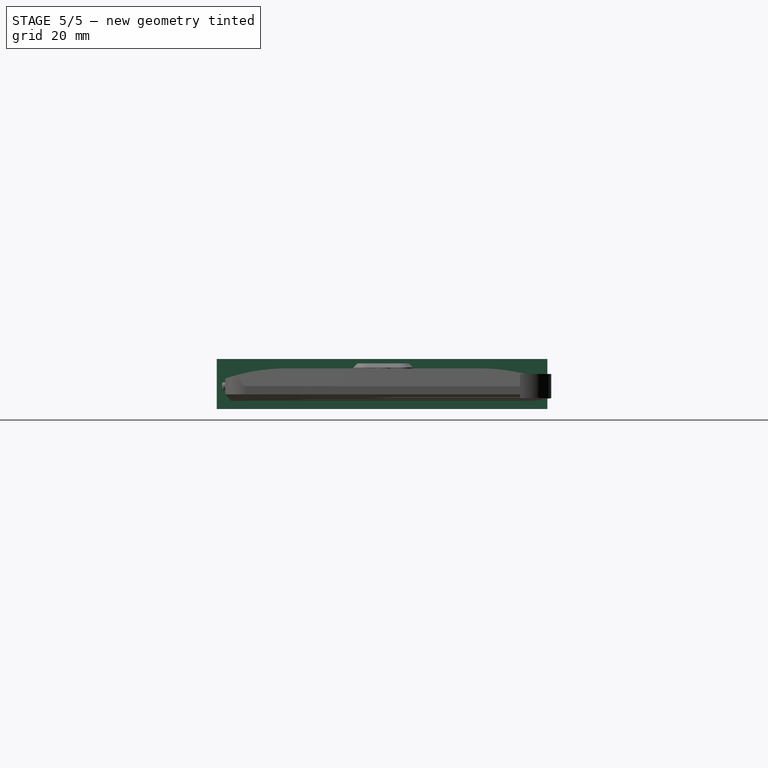
[diagram: stage 5 of 5 — right view after this stage's code; geometry added in this stage tinted green]
FEATURE [Sketcher::SketchObject] Sketch005
  MapMode = 5
  Support = -> [XY_Plane001]
  sketch-geometry (4):
    g0: LineSegment StartX=5.2909 StartY=-2 StartZ=0 EndX=10.2909 EndY=-2 EndZ=0
    g1: LineSegment StartX=10.2909 StartY=-2 StartZ=0 EndX=10.2909 EndY=77.25 EndZ=0
    g2: LineSegment StartX=10.2909 StartY=77.25 StartZ=0 EndX=5.2909 EndY=77.25 EndZ=0
    g3: LineSegment StartX=5.2909 StartY=77.25 StartZ=0 EndX=5.2909 EndY=-2 EndZ=0
  constraints (11):
    c: Coincident(g0,g1)
    c: Coincident(g1,g2)
    c: Coincident(g2,g3)
    c: Coincident(g3,g0)
    c: Horizontal(g0)
    c: Horizontal(g2)
    c: Vertical(g1)
    c: Vertical(g3)
    c: Distance(g-1,g0) = 2
    c: Distance(g2,g0) = 79.25
    c: DistanceX(g0,g0) = 5
FEATURE [PartDesign::Pad] Pad001
  Length = 10
  Length2 = 2
  Profile = -> Sketch005
  Type = 4
FEATURE [Part::Cut] Cut
  Base = -> Pad001
  Tool = -> Chamfer
FEATURE [Sketcher::SketchObject] Sketch030
  ExternalGeometry = -> [Pocket011]
  MapMode = 5
  Placement = pos=(0,0,0) rot=(0.707107,0.707107,0;3.14159rad)
  Support = -> [Pocket011]
  sketch-geometry (4):
    g0: ArcOfCircle CenterX=41.8994 CenterY=144.2 CenterZ=0 NormalX=0 NormalY=0 NormalZ=1 AngleXU=0 Radius=3.4 StartAngle=4.71239 EndAngle=7.85398
    g1: ArcOfCircle CenterX=33.8994 CenterY=144.2 CenterZ=0 NormalX=0 NormalY=0 NormalZ=1 AngleXU=0 Radius=3.4 StartAngle=1.5708 EndAngle=4.71239
    g2: LineSegment StartX=41.8994 StartY=147.6 StartZ=0 EndX=33.8994 EndY=147.6 EndZ=0
    g3: LineSegment StartX=41.8994 StartY=140.8 StartZ=0 EndX=33.8994 EndY=140.8 EndZ=0
FEATURE [PartDesign::Pocket] Pocket012  label="HomeButtonHole"
  BaseFeature = -> Pocket011
  Length = 0.3
  Length2 = 100
  Placement = pos=(0,0,0) rot=(0.57735,0.57735,0.57735;2.0944rad)
  Profile = -> Sketch030
  Type = 0
FEATURE [PartDesign::Chamfer] Chamfer005  label="HomeButtonChamfer"
  Base = -> Pocket012 [Face272]
  BaseFeature = -> Pocket012
  Placement = pos=(0,0,0) rot=(0.57735,0.57735,0.57735;2.0944rad)
  Size = 0.29
FEATURE [Sketcher::SketchObject] Sketch031
  ExternalGeometry = -> [Chamfer005]
  MapMode = 5
  Placement = pos=(0,0,0) rot=(0.707107,0.707107,0;3.14159rad)
  Support = -> [Chamfer005]
  sketch-geometry (10):
    g0: ArcOfCircle CenterX=42.825 CenterY=6.8 CenterZ=0 NormalX=0 NormalY=0 NormalZ=1 AngleXU=0 Radius=0.55 StartAngle=4.71239 EndAngle=7.85398
    g1: ArcOfCircle CenterX=32.925 CenterY=6.8 CenterZ=0 NormalX=0 NormalY=0 NormalZ=1 AngleXU=0 Radius=0.55 StartAngle=1.5708 EndAngle=4.71239
    g2: LineSegment StartX=42.825 StartY=7.35 StartZ=0 EndX=32.925 EndY=7.35 EndZ=0
    g3: LineSegment StartX=42.825 StartY=6.25 StartZ=0 EndX=32.925 EndY=6.25 EndZ=0
    g4: LineSegment [constr] StartX=5 StartY=0 StartZ=0 EndX=32.925 EndY=6.8 EndZ=0
    g5: LineSegment [constr] StartX=42.825 StartY=6.8 StartZ=0 EndX=70.75 EndY=0 EndZ=0
    g6: ArcOfCircle CenterX=42.825 CenterY=6.8 CenterZ=0 NormalX=0 NormalY=0 NormalZ=1 AngleXU=0 Radius=0.35 StartAngle=4.71239 EndAngle=7.85398
    g7: ArcOfCircle CenterX=32.925 CenterY=6.8 CenterZ=0 NormalX=0 NormalY=0 NormalZ=1 AngleXU=0 Radius=0.35 StartAngle=1.5708 EndAngle=4.71239
    g8: LineSegment StartX=42.825 StartY=7.15 StartZ=0 EndX=32.925 EndY=7.15 EndZ=0
    g9: LineSegment StartX=42.825 StartY=6.45 StartZ=0 EndX=32.925 EndY=6.45 EndZ=0
  constraints (23):
    c: Tangent(g0,g3) = 1.5708
    c: Tangent(g0,g2) = -1.5708
    c: Tangent(g2,g1) = -1.5708
    c: Tangent(g3,g1) = 1.5708
    c: Horizontal(g2)
    c: Equal(g0,g1)
    c: Coincident(g4,g-3)
    c: Coincident(g4,g1)
    c: Coincident(g5,g0)
    c: Coincident(g5,g-3)
    c: Equal(g4,g5)
    c: Distance(g1,g-3) = 6.8
    c: Radius(g1) = 0.55
    c: Distance(g3) = 9.9
    c: Tangent(g6,g9) = 1.5708
    c: Tangent(g6,g8) = -1.5708
    c: Tangent(g8,g7) = -1.5708
    c: Tangent(g9,g7) = 1.5708
    c: Horizontal(g8)
    c: Equal(g6,g7)
    c: Coincident(g7,g1)
    c: DistanceY(g0,g6) = 0.2
    c: Coincident(g6,g0)
FEATURE [PartDesign::Pocket] Pocket013  label="FrontSpeaker"
  BaseFeature = -> Chamfer005
  Length = 0.1
  Length2 = 100
  Placement = pos=(0,0,0) rot=(0.57735,0.57735,0.57735;2.0944rad)
  Profile = -> Sketch031
  Type = 0
FEATURE [PartDesign::Chamfer] Chamfer006  label="FrontSpeakerChamfer"
  Base = -> Pocket013 [Face31]
  BaseFeature = -> Pocket013
  Placement = pos=(0,0,0) rot=(0.57735,0.57735,0.57735;2.0944rad)
  Size = 0.099
FEATURE [Sketcher::SketchObject] Sketch032
  ExternalGeometry = -> [Chamfer006]
  MapMode = 5
  Placement = pos=(0,0,0) rot=(0.707107,0.707107,0;3.14159rad)
  Support = -> [Chamfer006]
  sketch-geometry (17):
    g0: ArcOfCircle CenterX=70.75 CenterY=148 CenterZ=0 NormalX=0 NormalY=0 NormalZ=1 AngleXU=0 Radius=4.25 StartAngle=5.3096e-08 EndAngle=1.5708
    g1: ArcOfCircle CenterX=5 CenterY=148 CenterZ=0 NormalX=0 NormalY=0 NormalZ=1 AngleXU=0 Radius=4.25 StartAngle=1.5708 EndAngle=3.14159
    g2: ArcOfCircle CenterX=5 CenterY=5 CenterZ=0 NormalX=0 NormalY=0 NormalZ=1 AngleXU=0 Radius=4.25 StartAngle=3.14159 EndAngle=4.71239
    g3: ArcOfCircle CenterX=70.75 CenterY=5 CenterZ=0 NormalX=0 NormalY=0 NormalZ=1 AngleXU=0 Radius=4.25 StartAngle=4.71239 EndAngle=6.28319
    g4: LineSegment StartX=70.75 StartY=0.75 StartZ=0 EndX=5 EndY=0.75 EndZ=0
    g5: LineSegment StartX=0.75 StartY=5 StartZ=0 EndX=0.75 EndY=148 EndZ=0
    g6: LineSegment StartX=5 StartY=152.25 StartZ=0 EndX=70.75 EndY=152.25 EndZ=0
    g7: LineSegment StartX=75 StartY=148 StartZ=0 EndX=75 EndY=5 EndZ=0
    g8: Circle [constr] CenterX=5 CenterY=152.25 CenterZ=0 NormalX=0 NormalY=0 NormalZ=1 AngleXU=0 Radius=0.75
    g9: ArcOfCircle CenterX=5 CenterY=148 CenterZ=0 NormalX=0 NormalY=0 NormalZ=1 AngleXU=0 Radius=3.8 StartAngle=1.5708 EndAngle=3.14159
    g10: ArcOfCircle CenterX=70.75 CenterY=148 CenterZ=0 NormalX=0 NormalY=0 NormalZ=1 AngleXU=0 Radius=3.8 StartAngle=-1.6e-11 EndAngle=1.5708
    g11: ArcOfCircle CenterX=70.75 CenterY=5 CenterZ=0 NormalX=0 NormalY=0 NormalZ=1 AngleXU=0 Radius=3.8 StartAngle=4.71239 EndAngle=6.28319
    g12: ArcOfCircle CenterX=5 CenterY=5 CenterZ=0 NormalX=0 NormalY=0 NormalZ=1 AngleXU=0 Radius=3.8 StartAngle=3.14159 EndAngle=4.71239
    g13: LineSegment StartX=5 StartY=1.2 StartZ=0 EndX=70.75 EndY=1.2 EndZ=0
    g14: LineSegment StartX=74.55 StartY=5 StartZ=0 EndX=74.55 EndY=148 EndZ=0
    g15: LineSegment StartX=70.75 StartY=151.8 StartZ=0 EndX=5 EndY=151.8 EndZ=0
    g16: LineSegment StartX=1.2 StartY=5 StartZ=0 EndX=1.2 EndY=148 EndZ=0
  constraints (44):
    c: Coincident(g0,g-4)
    c: Coincident(g1,g-6)
    c: Coincident(g2,g-8)
    c: Coincident(g3,g-10)
    c: Coincident(g4,g3)
    c: Coincident(g4,g2)
    c: Coincident(g5,g2)
    c: Coincident(g5,g1)
    c: Vertical(g5)
    c: Coincident(g6,g1)
    c: Coincident(g6,g0)
    c: Horizontal(g6)
    c: Coincident(g7,g0)
    c: Coincident(g7,g3)
    c: Vertical(g7)
    c: Horizontal(g4)
    c: Tangent(g3,g4)
    c: Tangent(g2,g5)
    c: Tangent(g1,g6)
    c: Tangent(g0,g7)
    c: Coincident(g8,g1)
    c: PointOnObject(g-6,g8)
    c: PointOnObject(g-11,g8)
    c: Coincident(g9,g1)
    c: Coincident(g10,g0)
    c: Coincident(g11,g3)
    c: Coincident(g15,g10)
    c: Coincident(g14,g10)
    c: Coincident(g12,g13)
    c: Coincident(g11,g13)
    c: Coincident(g16,g9)
    c: Coincident(g12,g16)
    c: Vertical(g16)
    c: Vertical(g14)
    c: Horizontal(g13)
    c: Horizontal(g15)
    c: Coincident(g15,g9)
    c: Tangent(g10,g15)
    c: Tangent(g9,g16)
    c: Tangent(g12,g13)
    c: Tangent(g11,g14)
    c: Coincident(g11,g14)
    c: Coincident(g2,g12)
    c: DistanceY(g-6,g9) = 0.3
FEATURE [PartDesign::Plane] DatumPlane002  label="EdgeChamferNotchDatum"
  MapMode = 45
  Placement = pos=(152.25,37.875,0) rot=(0,0.707107,0.707107;3.14159rad)
  Support = -> [Sketch032]
FEATURE [Sketcher::SketchObject] Sketch033
  ExternalGeometry = -> [Sketch032,Chamfer006]
  MapMode = 5
  Placement = pos=(152.25,37.875,0) rot=(0,0.707107,0.707107;3.14159rad)
  Support = -> [DatumPlane002]
  sketch-geometry (5):
    g0: LineSegment StartX=-0.75 StartY=0 StartZ=0 EndX=0.0707107 EndY=0 EndZ=0
    g1: LineSegment StartX=0.0707107 StartY=0 StartZ=0 EndX=0.0707107 EndY=0.820711 EndZ=0
    g2: LineSegment StartX=0.0707107 StartY=0.820711 StartZ=0 EndX=-0.75 EndY=0.820711 EndZ=0
    g3: LineSegment StartX=-0.75 StartY=0.820711 StartZ=0 EndX=-0.75 EndY=0 EndZ=0
    g4: Circle [constr] CenterX=0.0707107 CenterY=0.820711 CenterZ=0 NormalX=0 NormalY=0 NormalZ=1 AngleXU=0 Radius=1.06536
  constraints (14):
    c: Coincident(g0,g1)
    c: Coincident(g1,g2)
    c: Coincident(g2,g3)
    c: Coincident(g3,g0)
    c: Horizontal(g0)
    c: Horizontal(g2)
    c: Vertical(g1)
    c: Vertical(g3)
    c: Coincident(g4,g1)
    c: PointOnObject(g-4,g4)
    c: PointOnObject(g-4,g4)
    c: Distance(g1,g-4) = 0.1
    c: PointOnObject(g-1,g0)
    c: PointOnObject(g-4,g3)
FEATURE [PartDesign::SubtractivePipe] SubtractivePipe002  label="EdgeChamferNotch"
  AuxilleryCurvelinear = true
  AuxillerySpineTangent = false
  BaseFeature = -> Chamfer006
  Binormal = (0,0,0)
  Mode = 2
  Placement = pos=(0,0,0) rot=(0.57735,0.57735,0.57735;2.0944rad)
  Profile = -> Sketch033
  Spine = -> Sketch032 [Edge2,Edge3,Edge4,Edge1,Edge8,Edge7,Edge6,Edge5]
  SpineTangent = false
  Transformation = 0
  Transition = 0
FEATURE [Sketcher::SketchObject] Sketch035
  ExternalGeometry = -> [Sketch032,Chamfer006]
  MapMode = 5
  Placement = pos=(152.25,37.875,0) rot=(0,0.707107,0.707107;3.14159rad)
  Support = -> [DatumPlane002]
  sketch-geometry (5):
    g0: LineSegment StartX=0 StartY=0 StartZ=0 EndX=0.45 EndY=0 EndZ=0
    g1: LineSegment StartX=0.45 StartY=0 StartZ=0 EndX=0.45 EndY=0.35 EndZ=0
    g2: LineSegment StartX=0.45 StartY=0.35 StartZ=0 EndX=0 EndY=0.35 EndZ=0
    g3: LineSegment StartX=0 StartY=0.35 StartZ=0 EndX=0 EndY=0 EndZ=0
    g4: GeomPoint X=0.45 Y=0.3 Z=0
  constraints (13):
    c: Coincident(g0,g1)
    c: Coincident(g1,g2)
    c: Coincident(g2,g3)
    c: Coincident(g3,g0)
    c: Horizontal(g0)
    c: Horizontal(g2)
    c: Vertical(g1)
    c: Vertical(g3)
    c: Coincident(g0,g-3)
    c: Coincident(g0,g-1)
    c: PointOnObject(g4,g1)
    c: PointOnObject(g4,g-4)
    c: DistanceY(g4,g1) = 0.05
FEATURE [PartDesign::SubtractivePipe] SubtractivePipe003  label="EdgeChamferGlassNotch"
  AuxilleryCurvelinear = true
  AuxillerySpineTangent = false
  BaseFeature = -> SubtractivePipe002
  Binormal = (0,0,0)
  Mode = 2
  Placement = pos=(0,0,0) rot=(0.57735,0.57735,0.57735;2.0944rad)
  Profile = -> Sketch035
  Spine = -> Sketch032 [Edge14,Edge13,Edge12,Edge11,Edge10,Edge9,Edge16,Edge15]
  SpineTangent = false
  Transformation = 0
  Transition = 0
FEATURE [PartDesign::Fillet] Fillet001
  Base = -> SubtractivePipe003 [Edge16]
  BaseFeature = -> SubtractivePipe003
  Placement = pos=(0,0,0) rot=(0.57735,0.57735,0.57735;2.0944rad)
  Radius = 1.024
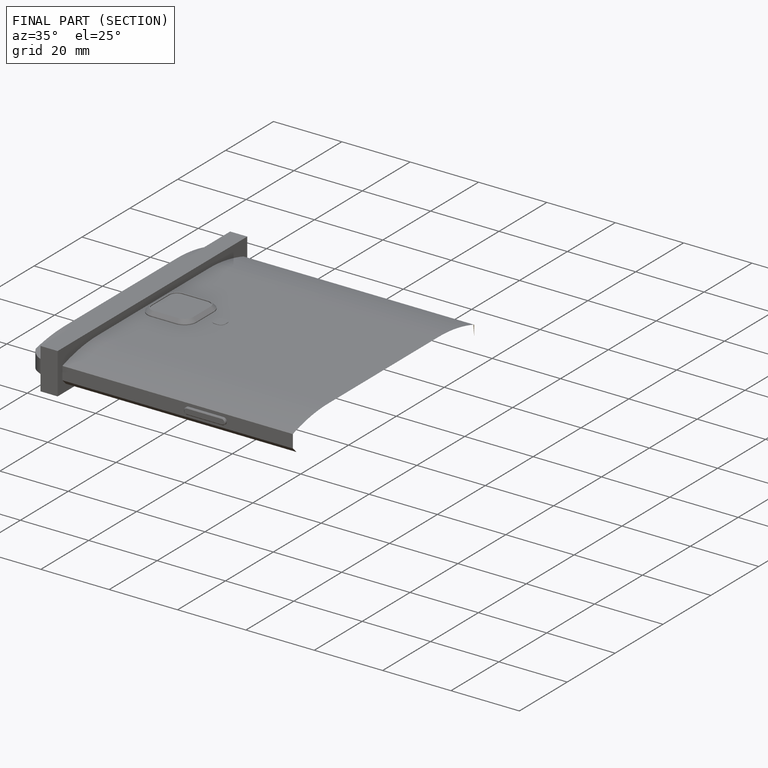
[diagram: finished part — half-section view (interior)]
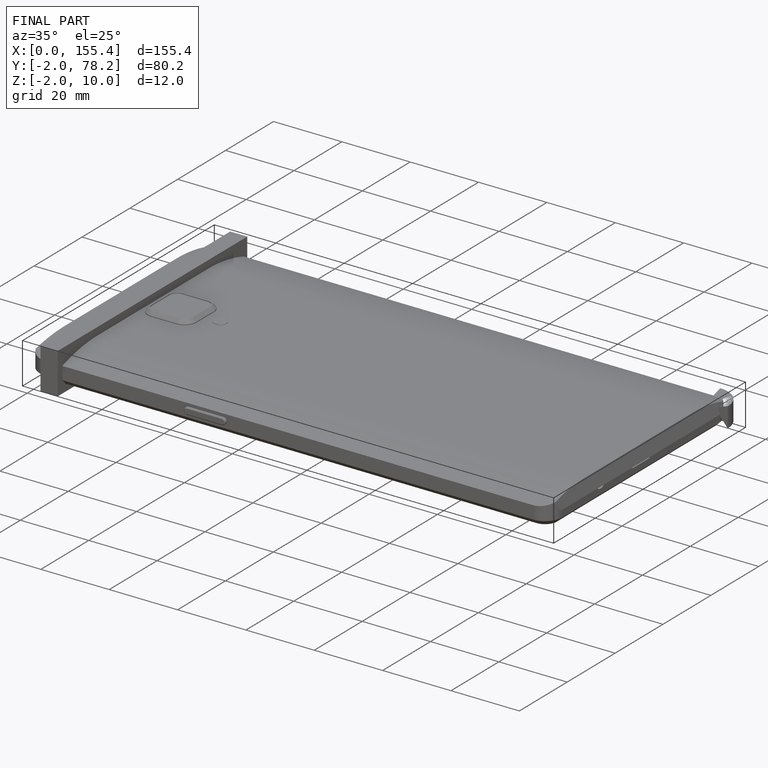
[diagram: finished part — iso view with bounding-box wireframe]
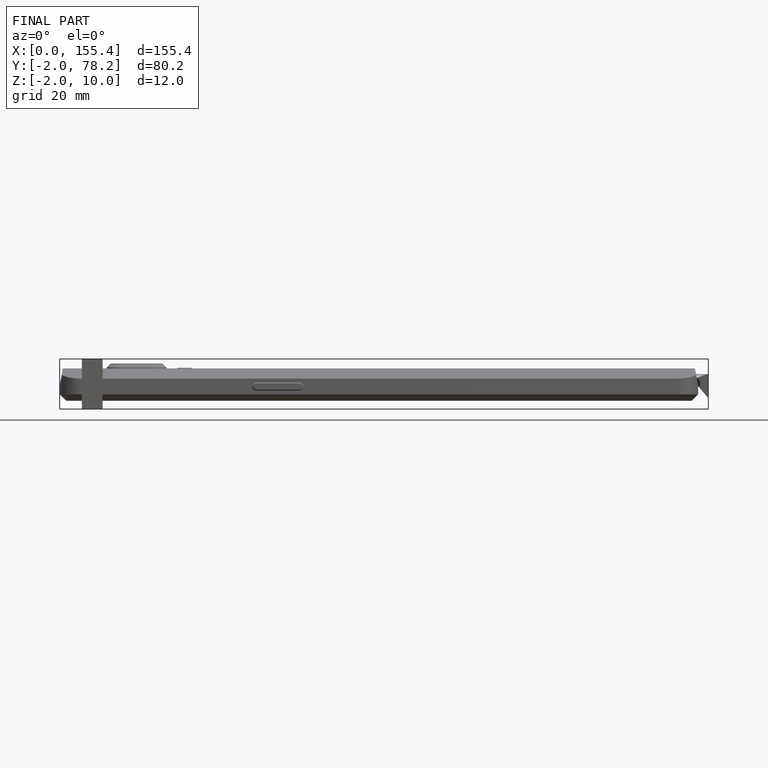
[diagram: finished part — front view with bounding-box wireframe]
